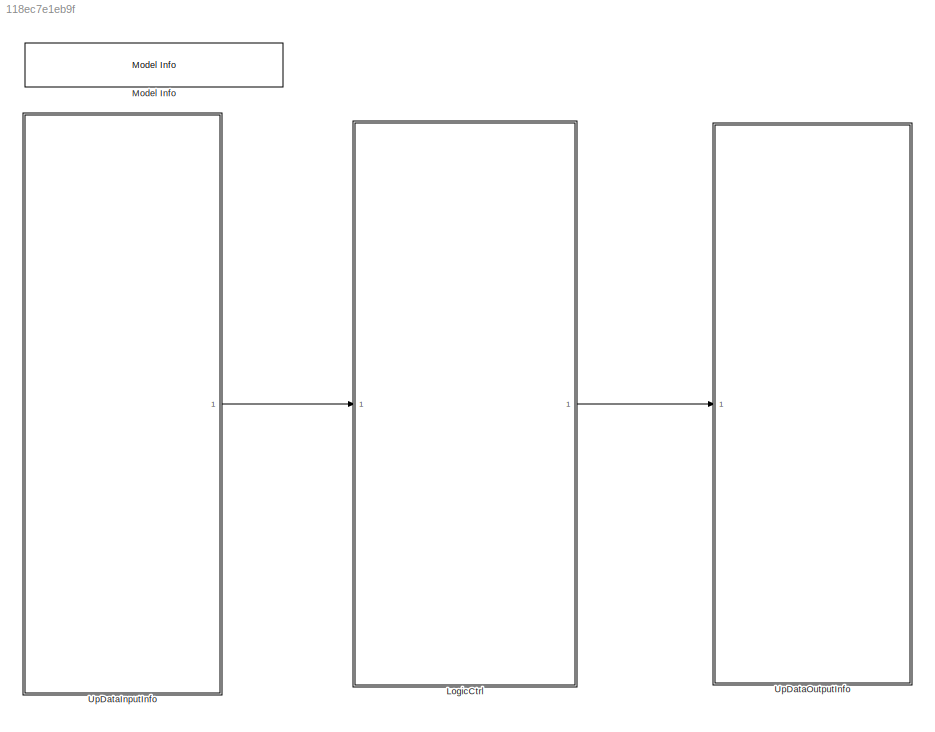
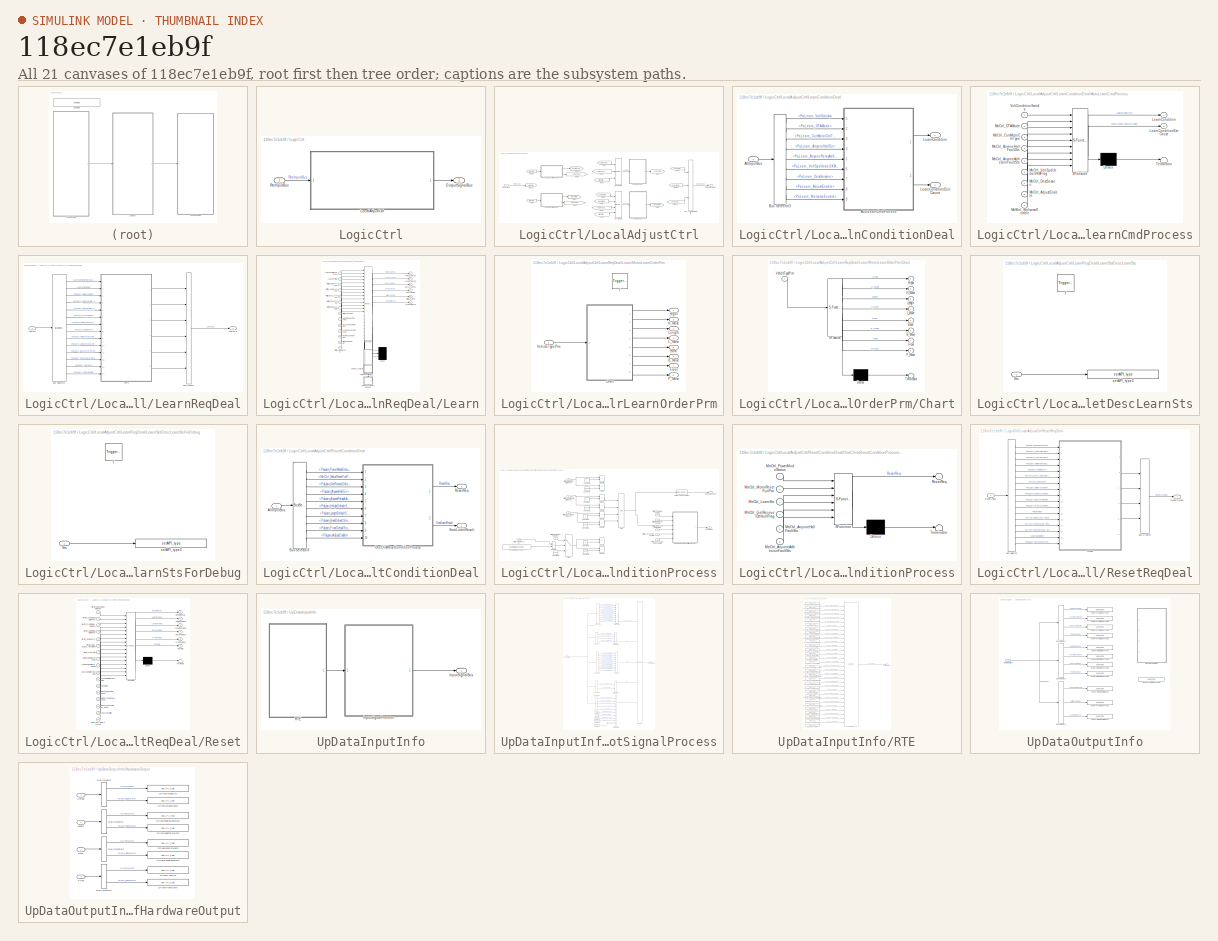
[diagram: thumbnail index - all 21 canvases of the model, root first then tree order]
MODEL slx_118ec7e1eb9f
KIND model
BLOCK [SubSystem] LogicCtrl
  Ports = [1, 1]
  Priority = 2
  RTWFcnNameOpts = Use subsystem name
  RTWSystemCode = Nonreusable function
  RequestExecContextInheritance = off
  TreatAsAtomicUnit = on
BLOCK [SubSystem] LogicCtrl/LocalAdjustCtrl
  AttributesFormatString = %<Description>
  Description = 学习逻辑处理
  Ports = [1, 1]
  RequestExecContextInheritance = off
BLOCK [BusCreator] LogicCtrl/LocalAdjustCtrl/Bus Creator
  DisplayOption = bar
  InheritFromInputs = on
  Inputs = 3
  Ports = [3, 1]
BLOCK [BusCreator] LogicCtrl/LocalAdjustCtrl/Bus Creator1
  DisplayOption = bar
  InheritFromInputs = on
  Inputs = 4
  Ports = [4, 1]
BLOCK [BusCreator] LogicCtrl/LocalAdjustCtrl/Can_LengthMotorCtrl2
  DisplayOption = bar
  InheritFromInputs = on
  Inputs = 3
  Ports = [3, 1]
BLOCK [From] LogicCtrl/LocalAdjustCtrl/From1
  GotoTag = AllInputBus
BLOCK [From] LogicCtrl/LocalAdjustCtrl/From10
  GotoTag = ResetOutBus
BLOCK [From] LogicCtrl/LocalAdjustCtrl/From11
  GotoTag = SeatLearnResult
BLOCK [From] LogicCtrl/LocalAdjustCtrl/From19
  GotoTag = AllInputBus
BLOCK [From] LogicCtrl/LocalAdjustCtrl/From2
  GotoTag = LearnConditionExitCause
BLOCK [From] LogicCtrl/LocalAdjustCtrl/From3
  GotoTag = LearnCondition
BLOCK [From] LogicCtrl/LocalAdjustCtrl/From4
  GotoTag = LearnOutBus
BLOCK [From] LogicCtrl/LocalAdjustCtrl/From5
  GotoTag = AllInputBus
BLOCK [From] LogicCtrl/LocalAdjustCtrl/From6
  GotoTag = AllInputBus
BLOCK [From] LogicCtrl/LocalAdjustCtrl/From7
  GotoTag = LearnCondition
BLOCK [From] LogicCtrl/LocalAdjustCtrl/From8
  GotoTag = ResetReq
BLOCK [From] LogicCtrl/LocalAdjustCtrl/From9
  GotoTag = LearnOutBus
BLOCK [Goto] LogicCtrl/LocalAdjustCtrl/Goto1
  GotoTag = LearnCondition
BLOCK [Goto] LogicCtrl/LocalAdjustCtrl/Goto17
  GotoTag = AllInputBus
BLOCK [Goto] LogicCtrl/LocalAdjustCtrl/Goto2
  GotoTag = LearnConditionExitCause
BLOCK [Goto] LogicCtrl/LocalAdjustCtrl/Goto3
  GotoTag = LearnOutBus
BLOCK [Goto] LogicCtrl/LocalAdjustCtrl/Goto4
  GotoTag = ResetReq
BLOCK [Goto] LogicCtrl/LocalAdjustCtrl/Goto5
  GotoTag = SeatLearnResult
BLOCK [Goto] LogicCtrl/LocalAdjustCtrl/Goto6
  GotoTag = ResetOutBus
BLOCK [SubSystem] LogicCtrl/LocalAdjustCtrl/LearnConditionDeal
  Ports = [1, 2]
  RequestExecContextInheritance = off
BLOCK [Inport] LogicCtrl/LocalAdjustCtrl/LearnConditionDeal/AllInputBus
  IconDisplay = Port number
BLOCK [SubSystem] LogicCtrl/LocalAdjustCtrl/LearnConditionDeal/AutoLearnCmdProcess
  ErrorFcn = Stateflow.Translate.translate
  PermitHierarchicalResolution = ExplicitOnly
  Ports = [9, 2]
  RequestExecContextInheritance = off
  SFBlockType = Chart
  TreatAsAtomicUnit = on
BLOCK [Demux] LogicCtrl/LocalAdjustCtrl/LearnConditionDeal/AutoLearnCmdProcess/ Demux 
  Outputs = 1
  Ports = [1, 1]
BLOCK [S-Function] LogicCtrl/LocalAdjustCtrl/LearnConditionDeal/AutoLearnCmdProcess/ SFunction 
  EnableBusSupport = on
  FunctionName = sf_sfun
  Parameters = FALSE,TRUE
  PortCounts = [9 3]
  Ports = [9, 3]
  SFcnIsStateOwnerBlock = off
  SFunctionDeploymentMode = off
  Tag = Stateflow S-Function Appl_PaLearn_CtrlModel 1
BLOCK [Terminator] LogicCtrl/LocalAdjustCtrl/LearnConditionDeal/AutoLearnCmdProcess/ Terminator 
BLOCK [Outport] LogicCtrl/LocalAdjustCtrl/LearnConditionDeal/AutoLearnCmdProcess/LearnCondition
  IconDisplay = Port number
BLOCK [Outport] LogicCtrl/LocalAdjustCtrl/LearnConditionDeal/AutoLearnCmdProcess/LearnConditionExitCause
  IconDisplay = Port number
  Port = 2
BLOCK [Inport] LogicCtrl/LocalAdjustCtrl/LearnConditionDeal/AutoLearnCmdProcess/MtrCtrl_AdjustEnable
  IconDisplay = Port number
  Port = 8
BLOCK [Inport] LogicCtrl/LocalAdjustCtrl/LearnConditionDeal/AutoLearnCmdProcess/MtrCtrl_AnyoneAdhesionFaultSts
  IconDisplay = Port number
  Port = 5
BLOCK [Inport] LogicCtrl/LocalAdjustCtrl/LearnConditionDeal/AutoLearnCmdProcess/MtrCtrl_AnyoneHallFaultSts
  IconDisplay = Port number
  Port = 4
BLOCK [Inport] LogicCtrl/LocalAdjustCtrl/LearnConditionDeal/AutoLearnCmdProcess/MtrCtrl_CurrMotorCtrlType
  IconDisplay = Port number
  Port = 3
BLOCK [Inport] LogicCtrl/LocalAdjustCtrl/LearnConditionDeal/AutoLearnCmdProcess/MtrCtrl_DescSession
  IconDisplay = Port number
  Port = 7
BLOCK [Inport] LogicCtrl/LocalAdjustCtrl/LearnConditionDeal/AutoLearnCmdProcess/MtrCtrl_OTAMode
  IconDisplay = Port number
  Port = 2
BLOCK [Inport] LogicCtrl/LocalAdjustCtrl/LearnConditionDeal/AutoLearnCmdProcess/MtrCtrl_VehSpdUnder3KMFlag
  IconDisplay = Port number
  Port = 6
BLOCK [Inport] LogicCtrl/LocalAdjustCtrl/LearnConditionDeal/AutoLearnCmdProcess/MtrWel_WelcomeEnable
  IconDisplay = Port number
  Port = 9
BLOCK [Inport] LogicCtrl/LocalAdjustCtrl/LearnConditionDeal/AutoLearnCmdProcess/VoltConditionSatisfy
  IconDisplay = Port number
BLOCK [BusSelector] LogicCtrl/LocalAdjustCtrl/LearnConditionDeal/Bus Selector3
  OutputAsBus = off
  OutputSignals = Power.PaLearn_VoltSatisfy,LearnDescConditions.PaLearn_OTAMode,LearnDescConditions.PaLearn_CurrMotorCtrlType,ErrSts.PaLearn_AnyoneHallErr,ErrSts.PaLearn_AnyoneRelayAdheErr,LearnDescConditions.PaLearn_VehSpdUnder3KMFlag,LearnDescConditions.PaLearn_DescSession,LearnDescConditions.PaLearn_AdjustEnable,LearnDescConditions.PaLearn_WelcomeEnable
  Ports = [1, 9]
BLOCK [Outport] LogicCtrl/LocalAdjustCtrl/LearnConditionDeal/LearnCondition
  IconDisplay = Port number
BLOCK [Outport] LogicCtrl/LocalAdjustCtrl/LearnConditionDeal/LearnConditionExitCause
  IconDisplay = Port number
  Port = 2
BLOCK [SubSystem] LogicCtrl/LocalAdjustCtrl/LearnReqDeal
  Ports = [1, 1]
  RequestExecContextInheritance = off
BLOCK [BusCreator] LogicCtrl/LocalAdjustCtrl/LearnReqDeal/Bus Creator
  DisplayOption = bar
  InheritFromInputs = on
  Inputs = 6
  Ports = [6, 1]
BLOCK [BusSelector] LogicCtrl/LocalAdjustCtrl/LearnReqDeal/Bus Selector1
  OutputAsBus = off
  OutputSignals = LearnConditionExitCause,LearnCondition,RteInputBus.ErrSts.PaLearn_HeightStallErr,RteInputBus.ErrSts.PaLearn_LengthStallErr,RteInputBus.ErrSts.PaLearn_BackStallErr,RteInputBus.ErrSts.PaLearn_FrontStallErr,RteInputBus.LearnDescConditions.PaLearn_DiagnoseLearnIn,RteInputBus.LearnDescConditions.PaLearn_VehiclePrm,RteInputBus.ErrSts.PaLearn_HeightMotorTimeOutErr,RteInputBus.ErrSts.PaLearn_LengthMotorTi...<+205ch>
  Ports = [1, 14]
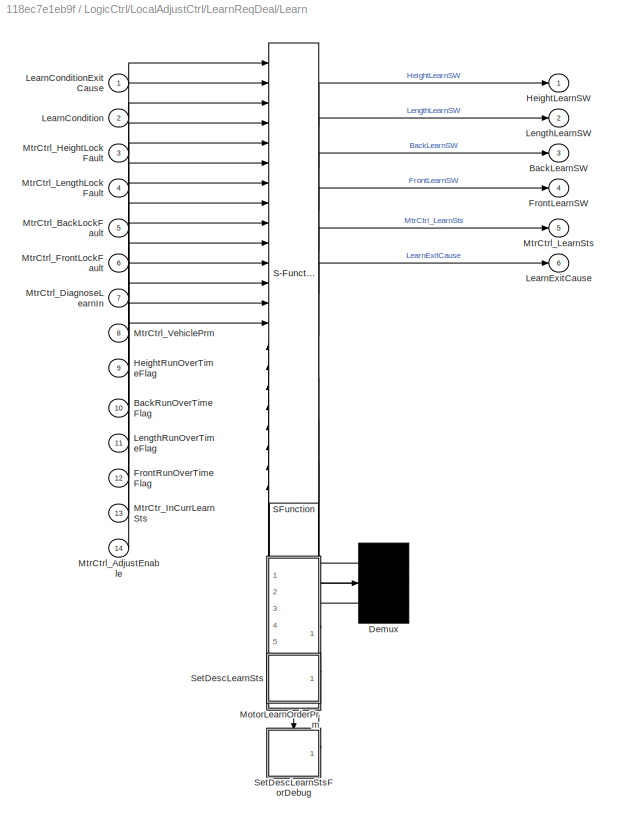
BLOCK [SubSystem] LogicCtrl/LocalAdjustCtrl/LearnReqDeal/Learn
  ErrorFcn = Stateflow.Translate.translate
  PermitHierarchicalResolution = ExplicitOnly
  Ports = [14, 6]
  RequestExecContextInheritance = off
  SFBlockType = Chart
  TreatAsAtomicUnit = on
BLOCK [Demux] LogicCtrl/LocalAdjustCtrl/LearnReqDeal/Learn/ Demux 
  Outputs = 3
  Ports = [1, 3]
BLOCK [S-Function] LogicCtrl/LocalAdjustCtrl/LearnReqDeal/Learn/ SFunction 
  EnableBusSupport = on
  FunctionName = sf_sfun
  Parameters = CAL_LearnAllTimeMax_150s,CAL_LearnSingleTimeMax_60s,D_FirstMove,D_FourthlyMove,D_Invalid,D_SecondMove,D_ThirdlyMove,FALSE,TRUE
  PortCounts = [22 10]
  Ports = [22, 10]
  SFcnIsStateOwnerBlock = off
  SFunctionDeploymentMode = off
  Tag = Stateflow S-Function Appl_PaLearn_CtrlModel 42
BLOCK [Outport] LogicCtrl/LocalAdjustCtrl/LearnReqDeal/Learn/BackLearnSW
  IconDisplay = Port number
  Port = 3
BLOCK [Inport] LogicCtrl/LocalAdjustCtrl/LearnReqDeal/Learn/BackRunOverTimeFlag
  IconDisplay = Port number
  Port = 10
BLOCK [Outport] LogicCtrl/LocalAdjustCtrl/LearnReqDeal/Learn/FrontLearnSW
  IconDisplay = Port number
  Port = 4
BLOCK [Inport] LogicCtrl/LocalAdjustCtrl/LearnReqDeal/Learn/FrontRunOverTimeFlag
  IconDisplay = Port number
  Port = 12
BLOCK [Outport] LogicCtrl/LocalAdjustCtrl/LearnReqDeal/Learn/HeightLearnSW
  IconDisplay = Port number
BLOCK [Inport] LogicCtrl/LocalAdjustCtrl/LearnReqDeal/Learn/HeightRunOverTimeFlag
  IconDisplay = Port number
  Port = 9
BLOCK [Inport] LogicCtrl/LocalAdjustCtrl/LearnReqDeal/Learn/LearnCondition
  IconDisplay = Port number
  Port = 2
BLOCK [Inport] LogicCtrl/LocalAdjustCtrl/LearnReqDeal/Learn/LearnConditionExitCause
  IconDisplay = Port number
BLOCK [Outport] LogicCtrl/LocalAdjustCtrl/LearnReqDeal/Learn/LearnExitCause
  IconDisplay = Port number
  Port = 6
BLOCK [Outport] LogicCtrl/LocalAdjustCtrl/LearnReqDeal/Learn/LengthLearnSW
  IconDisplay = Port number
  Port = 2
BLOCK [Inport] LogicCtrl/LocalAdjustCtrl/LearnReqDeal/Learn/LengthRunOverTimeFlag
  IconDisplay = Port number
  Port = 11
BLOCK [SubSystem] LogicCtrl/LocalAdjustCtrl/LearnReqDeal/Learn/MotorLearnOrderPrm
  Commented = on
  Ports = [1, 8, 0, 1]
  PreDeleteFcn = Stateflow.SLINSF.SimulinkMan.removePreDeleteFcn
  RequestExecContextInheritance = off
  UndoDeleteFcn = Stateflow.SLINSF.SimulinkMan.restorePreDeleteFcn
BLOCK [Outport] LogicCtrl/LocalAdjustCtrl/LearnReqDeal/Learn/MotorLearnOrderPrm/B_Move
  IconDisplay = Port number
  Port = 6
BLOCK [Outport] LogicCtrl/LocalAdjustCtrl/LearnReqDeal/Learn/MotorLearnOrderPrm/Back
  IconDisplay = Port number
  Port = 5
BLOCK [SubSystem] LogicCtrl/LocalAdjustCtrl/LearnReqDeal/Learn/MotorLearnOrderPrm/Chart
  ErrorFcn = Stateflow.Translate.translate
  PermitHierarchicalResolution = ExplicitOnly
  Ports = [1, 8]
  RequestExecContextInheritance = off
  SFBlockType = Chart
  TreatAsAtomicUnit = on
BLOCK [Demux] LogicCtrl/LocalAdjustCtrl/LearnReqDeal/Learn/MotorLearnOrderPrm/Chart/ Demux 
  Outputs = 1
  Ports = [1, 1]
BLOCK [S-Function] LogicCtrl/LocalAdjustCtrl/LearnReqDeal/Learn/MotorLearnOrderPrm/Chart/ SFunction 
  EnableBusSupport = off
  FunctionName = sf_sfun
  Parameters = D_FirstMove,D_FourthlyMove,D_Invalid,D_SecondMove,D_ThirdlyMove
  PortCounts = [1 9]
  Ports = [1, 9]
  SFcnIsStateOwnerBlock = off
  SFunctionDeploymentMode = off
  Tag = Stateflow S-Function Appl_PaLearn_CtrlModel 43
BLOCK [Terminator] LogicCtrl/LocalAdjustCtrl/LearnReqDeal/Learn/MotorLearnOrderPrm/Chart/ Terminator 
BLOCK [Outport] LogicCtrl/LocalAdjustCtrl/LearnReqDeal/Learn/MotorLearnOrderPrm/Chart/B_Move
  IconDisplay = Port number
  Port = 6
BLOCK [Outport] LogicCtrl/LocalAdjustCtrl/LearnReqDeal/Learn/MotorLearnOrderPrm/Chart/Back
  IconDisplay = Port number
  Port = 5
BLOCK [Outport] LogicCtrl/LocalAdjustCtrl/LearnReqDeal/Learn/MotorLearnOrderPrm/Chart/F_Move
  IconDisplay = Port number
  Port = 8
BLOCK [Outport] LogicCtrl/LocalAdjustCtrl/LearnReqDeal/Learn/MotorLearnOrderPrm/Chart/Front
  IconDisplay = Port number
  Port = 7
BLOCK [Outport] LogicCtrl/LocalAdjustCtrl/LearnReqDeal/Learn/MotorLearnOrderPrm/Chart/H_Move
  IconDisplay = Port number
  Port = 2
BLOCK [Outport] LogicCtrl/LocalAdjustCtrl/LearnReqDeal/Learn/MotorLearnOrderPrm/Chart/Hight
  IconDisplay = Port number
BLOCK [Outport] LogicCtrl/LocalAdjustCtrl/LearnReqDeal/Learn/MotorLearnOrderPrm/Chart/L_Move
  IconDisplay = Port number
  Port = 4
BLOCK [Outport] LogicCtrl/LocalAdjustCtrl/LearnReqDeal/Learn/MotorLearnOrderPrm/Chart/Length
  IconDisplay = Port number
  Port = 3
BLOCK [Inport] LogicCtrl/LocalAdjustCtrl/LearnReqDeal/Learn/MotorLearnOrderPrm/Chart/VehicleTypePrm
  IconDisplay = Port number
BLOCK [Outport] LogicCtrl/LocalAdjustCtrl/LearnReqDeal/Learn/MotorLearnOrderPrm/F_Move
  IconDisplay = Port number
  Port = 8
BLOCK [Outport] LogicCtrl/LocalAdjustCtrl/LearnReqDeal/Learn/MotorLearnOrderPrm/Front
  IconDisplay = Port number
  Port = 7
BLOCK [Outport] LogicCtrl/LocalAdjustCtrl/LearnReqDeal/Learn/MotorLearnOrderPrm/H_Move
  IconDisplay = Port number
  Port = 2
BLOCK [Outport] LogicCtrl/LocalAdjustCtrl/LearnReqDeal/Learn/MotorLearnOrderPrm/Hight
  IconDisplay = Port number
BLOCK [Outport] LogicCtrl/LocalAdjustCtrl/LearnReqDeal/Learn/MotorLearnOrderPrm/L_Move
  IconDisplay = Port number
  Port = 4
BLOCK [Outport] LogicCtrl/LocalAdjustCtrl/LearnReqDeal/Learn/MotorLearnOrderPrm/Length
  IconDisplay = Port number
  Port = 3
BLOCK [Inport] LogicCtrl/LocalAdjustCtrl/LearnReqDeal/Learn/MotorLearnOrderPrm/VehicleTypePrm
  IconDisplay = Port number
BLOCK [TriggerPort] LogicCtrl/LocalAdjustCtrl/LearnReqDeal/Learn/MotorLearnOrderPrm/f
  CopyFcn = Stateflow.SLINSF.SimulinkMan.removeBlockPreDeleteFcn
  Ports = []
  PreDeleteFcn = Stateflow.SLINSF.SimulinkMan.unsafePredeleteFcn
  StatesWhenEnabling = held
  TriggerType = function-call
  VariantControl = (inherit)
BLOCK [Inport] LogicCtrl/LocalAdjustCtrl/LearnReqDeal/Learn/MtrCtr_InCurrLearnSts
  IconDisplay = Port number
  Port = 13
BLOCK [Inport] LogicCtrl/LocalAdjustCtrl/LearnReqDeal/Learn/MtrCtrl_AdjustEnable
  IconDisplay = Port number
  Port = 14
BLOCK [Inport] LogicCtrl/LocalAdjustCtrl/LearnReqDeal/Learn/MtrCtrl_BackLockFault
  IconDisplay = Port number
  Port = 5
BLOCK [Inport] LogicCtrl/LocalAdjustCtrl/LearnReqDeal/Learn/MtrCtrl_DiagnoseLearnIn
  IconDisplay = Port number
  Port = 7
BLOCK [Inport] LogicCtrl/LocalAdjustCtrl/LearnReqDeal/Learn/MtrCtrl_FrontLockFault
  IconDisplay = Port number
  Port = 6
BLOCK [Inport] LogicCtrl/LocalAdjustCtrl/LearnReqDeal/Learn/MtrCtrl_HeightLockFault
  IconDisplay = Port number
  Port = 3
BLOCK [Outport] LogicCtrl/LocalAdjustCtrl/LearnReqDeal/Learn/MtrCtrl_LearnSts
  IconDisplay = Port number
  Port = 5
BLOCK [Inport] LogicCtrl/LocalAdjustCtrl/LearnReqDeal/Learn/MtrCtrl_LengthLockFault
  IconDisplay = Port number
  Port = 4
BLOCK [Inport] LogicCtrl/LocalAdjustCtrl/LearnReqDeal/Learn/MtrCtrl_VehiclePrm
  IconDisplay = Port number
  Port = 8
BLOCK [SubSystem] LogicCtrl/LocalAdjustCtrl/LearnReqDeal/Learn/SetDescLearnSts
  Ports = [1, 0, 0, 1]
  PreDeleteFcn = Stateflow.SLINSF.SimulinkMan.removePreDeleteFcn
  RequestExecContextInheritance = off
  UndoDeleteFcn = Stateflow.SLINSF.SimulinkMan.restorePreDeleteFcn
BLOCK [Inport] LogicCtrl/LocalAdjustCtrl/LearnReqDeal/Learn/SetDescLearnSts/Sts
  IconDisplay = Port number
BLOCK [TriggerPort] LogicCtrl/LocalAdjustCtrl/LearnReqDeal/Learn/SetDescLearnSts/f
  CopyFcn = Stateflow.SLINSF.SimulinkMan.removeBlockPreDeleteFcn
  Ports = []
  PreDeleteFcn = Stateflow.SLINSF.SimulinkMan.unsafePredeleteFcn
  StatesWhenEnabling = held
  TriggerType = function-call
  VariantControl = (inherit)
BLOCK [Reference] LogicCtrl/LocalAdjustCtrl/LearnReqDeal/Learn/SetDescLearnSts/setAPI_type3  REF=DareLib/Dare/setAPI_type
  AttributesFormatString = %<g_funcname>
  Ports = [1]
  SourceBlock = DareLib/Dare/setAPI_type
  SourceProductName = Dare Library
  SourceType = Dare Custom
BLOCK [SubSystem] LogicCtrl/LocalAdjustCtrl/LearnReqDeal/Learn/SetDescLearnStsForDebug
  Commented = on
  Ports = [1, 0, 0, 1]
  PreDeleteFcn = Stateflow.SLINSF.SimulinkMan.removePreDeleteFcn
  RequestExecContextInheritance = off
  UndoDeleteFcn = Stateflow.SLINSF.SimulinkMan.restorePreDeleteFcn
BLOCK [Inport] LogicCtrl/LocalAdjustCtrl/LearnReqDeal/Learn/SetDescLearnStsForDebug/Sts
  IconDisplay = Port number
BLOCK [TriggerPort] LogicCtrl/LocalAdjustCtrl/LearnReqDeal/Learn/SetDescLearnStsForDebug/f
  CopyFcn = Stateflow.SLINSF.SimulinkMan.removeBlockPreDeleteFcn
  Ports = []
  PreDeleteFcn = Stateflow.SLINSF.SimulinkMan.unsafePredeleteFcn
  StatesWhenEnabling = held
  TriggerType = function-call
  VariantControl = (inherit)
BLOCK [Reference] LogicCtrl/LocalAdjustCtrl/LearnReqDeal/Learn/SetDescLearnStsForDebug/setAPI_type3  REF=DareLib/Dare/setAPI_type
  AttributesFormatString = %<g_funcname>
  Ports = [1]
  SourceBlock = DareLib/Dare/setAPI_type
  SourceProductName = Dare Library
  SourceType = Dare Custom
BLOCK [Inport] LogicCtrl/LocalAdjustCtrl/LearnReqDeal/LearnIn
  IconDisplay = Port number
BLOCK [Outport] LogicCtrl/LocalAdjustCtrl/LearnReqDeal/LearnOut
  IconDisplay = Port number
BLOCK [Outport] LogicCtrl/LocalAdjustCtrl/OutputSignalBus
  IconDisplay = Port number
BLOCK [SubSystem] LogicCtrl/LocalAdjustCtrl/ResetConditionDeal
  Ports = [1, 2]
  RequestExecContextInheritance = off
BLOCK [Inport] LogicCtrl/LocalAdjustCtrl/ResetConditionDeal/AllInputBus
  IconDisplay = Port number
BLOCK [BusSelector] LogicCtrl/LocalAdjustCtrl/ResetConditionDeal/Bus Selector3
  OutputAsBus = off
  OutputSignals = Power.PaLearn_PowerModeStatus,Reset.MtrCtrl_MotorResetFunPrm,Reset.PaLearn_GetRecoverDefaultFlag,ErrSts.PaLearn_AnyoneHallErr,ErrSts.PaLearn_AnyoneRelayAdheErr,HallCnt.PaLearn_HeightDefaultStopPos,HallCnt.PaLearn_LengthDefaultStopPos,HallCnt.PaLearn_BackDefaultStopPos,HallCnt.PaLearn_FrontDefaulStoptPos,LearnDescConditions.PaLearn_AdjustEnable
  Ports = [1, 10]
BLOCK [SubSystem] LogicCtrl/LocalAdjustCtrl/ResetConditionDeal/OneClickResetConditionProcess
  Description = 一键复位条件处理（BM400）
  Ports = [10, 2]
  RequestExecContextInheritance = off
BLOCK [Logic] LogicCtrl/LocalAdjustCtrl/ResetConditionDeal/OneClickResetConditionProcess/AND
  AllPortsSameDT = off
  Inputs = 4
  OutDataTypeStr = boolean
  Ports = [4, 1]
BLOCK [Constant] LogicCtrl/LocalAdjustCtrl/ResetConditionDeal/OneClickResetConditionProcess/Constant
  Value = 0
BLOCK [Constant] LogicCtrl/LocalAdjustCtrl/ResetConditionDeal/OneClickResetConditionProcess/Constant1
  Value = 65535
BLOCK [Constant] LogicCtrl/LocalAdjustCtrl/ResetConditionDeal/OneClickResetConditionProcess/Constant2
  Value = 0
BLOCK [Constant] LogicCtrl/LocalAdjustCtrl/ResetConditionDeal/OneClickResetConditionProcess/Constant3
  Value = 65535
BLOCK [Constant] LogicCtrl/LocalAdjustCtrl/ResetConditionDeal/OneClickResetConditionProcess/Constant4
  Commented = on
  Value = 0
BLOCK [Constant] LogicCtrl/LocalAdjustCtrl/ResetConditionDeal/OneClickResetConditionProcess/Constant5
  Commented = on
  Value = 65535
BLOCK [Constant] LogicCtrl/LocalAdjustCtrl/ResetConditionDeal/OneClickResetConditionProcess/Constant6
  Commented = on
  Value = 0
BLOCK [Constant] LogicCtrl/LocalAdjustCtrl/ResetConditionDeal/OneClickResetConditionProcess/Constant7
  Commented = on
  Value = 65535
BLOCK [Constant] LogicCtrl/LocalAdjustCtrl/ResetConditionDeal/OneClickResetConditionProcess/Constant9
  Commented = on
  Value = 30000
BLOCK [DataTypeConversion] LogicCtrl/LocalAdjustCtrl/ResetConditionDeal/OneClickResetConditionProcess/Data Type Conversion
  OutDataTypeStr = uint8
  RndMeth = Floor
  SaturateOnIntegerOverflow = off
BLOCK [Reference] LogicCtrl/LocalAdjustCtrl/ResetConditionDeal/OneClickResetConditionProcess/Enumerated Constant  REF=simulink/Sources/Enumerated
Constant
  Commented = on
  Ports = [0, 1]
  SourceBlock = simulink/Sources/Enumerated\nConstant
  SourceProductBaseCode = SL
  SourceProductName = Simulink
  SourceType = Enumerated Constant
BLOCK [RelationalOperator] LogicCtrl/LocalAdjustCtrl/ResetConditionDeal/OneClickResetConditionProcess/Equal
  InputSameDT = off
  Operator = ~=
  OutDataTypeStr = boolean
  Ports = [2, 1]
  RndMeth = Simplest
BLOCK [RelationalOperator] LogicCtrl/LocalAdjustCtrl/ResetConditionDeal/OneClickResetConditionProcess/Equal1
  InputSameDT = off
  Operator = ~=
  OutDataTypeStr = boolean
  Ports = [2, 1]
  RndMeth = Simplest
BLOCK [RelationalOperator] LogicCtrl/LocalAdjustCtrl/ResetConditionDeal/OneClickResetConditionProcess/Equal2
  InputSameDT = off
  Operator = ~=
  OutDataTypeStr = boolean
  Ports = [2, 1]
  RndMeth = Simplest
BLOCK [RelationalOperator] LogicCtrl/LocalAdjustCtrl/ResetConditionDeal/OneClickResetConditionProcess/Equal3
  InputSameDT = off
  Operator = ~=
  OutDataTypeStr = boolean
  Ports = [2, 1]
  RndMeth = Simplest
BLOCK [RelationalOperator] LogicCtrl/LocalAdjustCtrl/ResetConditionDeal/OneClickResetConditionProcess/Equal4
  Commented = on
  InputSameDT = off
  Operator = ~=
  OutDataTypeStr = boolean
  Ports = [2, 1]
  RndMeth = Simplest
BLOCK [RelationalOperator] LogicCtrl/LocalAdjustCtrl/ResetConditionDeal/OneClickResetConditionProcess/Equal5
  Commented = on
  InputSameDT = off
  Operator = ~=
  OutDataTypeStr = boolean
  Ports = [2, 1]
  RndMeth = Simplest
BLOCK [RelationalOperator] LogicCtrl/LocalAdjustCtrl/ResetConditionDeal/OneClickResetConditionProcess/Equal6
  Commented = on
  InputSameDT = off
  Operator = ~=
  OutDataTypeStr = boolean
  Ports = [2, 1]
  RndMeth = Simplest
BLOCK [RelationalOperator] LogicCtrl/LocalAdjustCtrl/ResetConditionDeal/OneClickResetConditionProcess/Equal7
  Commented = on
  InputSameDT = off
  Operator = ~=
  OutDataTypeStr = boolean
  Ports = [2, 1]
  RndMeth = Simplest
BLOCK [RelationalOperator] LogicCtrl/LocalAdjustCtrl/ResetConditionDeal/OneClickResetConditionProcess/Equal8
  Commented = on
  InputSameDT = off
  Operator = ==
  OutDataTypeStr = boolean
  Ports = [2, 1]
  RndMeth = Simplest
BLOCK [Inport] LogicCtrl/LocalAdjustCtrl/ResetConditionDeal/OneClickResetConditionProcess/MtrCtrl_AdjustEnable
  IconDisplay = Port number
  Port = 10
BLOCK [Inport] LogicCtrl/LocalAdjustCtrl/ResetConditionDeal/OneClickResetConditionProcess/MtrCtrl_AnyoneAdhesionFaultSts
  IconDisplay = Port number
  Port = 5
BLOCK [Inport] LogicCtrl/LocalAdjustCtrl/ResetConditionDeal/OneClickResetConditionProcess/MtrCtrl_AnyoneHallFaultSts
  IconDisplay = Port number
  Port = 4
BLOCK [Inport] LogicCtrl/LocalAdjustCtrl/ResetConditionDeal/OneClickResetConditionProcess/MtrCtrl_BackDefaultStopPos
  IconDisplay = Port number
  Port = 8
BLOCK [Inport] LogicCtrl/LocalAdjustCtrl/ResetConditionDeal/OneClickResetConditionProcess/MtrCtrl_FrontDefaulStoptPos
  IconDisplay = Port number
  Port = 9
BLOCK [Inport] LogicCtrl/LocalAdjustCtrl/ResetConditionDeal/OneClickResetConditionProcess/MtrCtrl_GetRecoverDefaultFlag
  IconDisplay = Port number
  Port = 3
BLOCK [Inport] LogicCtrl/LocalAdjustCtrl/ResetConditionDeal/OneClickResetConditionProcess/MtrCtrl_HeightDefaultStopPos
  IconDisplay = Port number
  Port = 6
BLOCK [Inport] LogicCtrl/LocalAdjustCtrl/ResetConditionDeal/OneClickResetConditionProcess/MtrCtrl_LengthDefaultStopPos
  IconDisplay = Port number
  Port = 7
BLOCK [Inport] LogicCtrl/LocalAdjustCtrl/ResetConditionDeal/OneClickResetConditionProcess/MtrCtrl_MotorResetFunPrm
  IconDisplay = Port number
  Port = 2
BLOCK [Inport] LogicCtrl/LocalAdjustCtrl/ResetConditionDeal/OneClickResetConditionProcess/MtrCtrl_PowerModeStatus
  IconDisplay = Port number
BLOCK [SubSystem] LogicCtrl/LocalAdjustCtrl/ResetConditionDeal/OneClickResetConditionProcess/OneClickResetConditionProcess
  ErrorFcn = Stateflow.Translate.translate
  PermitHierarchicalResolution = ExplicitOnly
  Ports = [6, 1]
  RequestExecContextInheritance = off
  SFBlockType = Chart
  TreatAsAtomicUnit = on
BLOCK [Demux] LogicCtrl/LocalAdjustCtrl/ResetConditionDeal/OneClickResetConditionProcess/OneClickResetConditionProcess/ Demux 
  Outputs = 1
  Ports = [1, 1]
BLOCK [S-Function] LogicCtrl/LocalAdjustCtrl/ResetConditionDeal/OneClickResetConditionProcess/OneClickResetConditionProcess/ SFunction 
  EnableBusSupport = on
  FunctionName = sf_sfun
  Parameters = FALSE,TRUE
  PortCounts = [6 2]
  Ports = [6, 2]
  SFcnIsStateOwnerBlock = off
  SFunctionDeploymentMode = off
  Tag = Stateflow S-Function Appl_PaLearn_CtrlModel 7
BLOCK [Terminator] LogicCtrl/LocalAdjustCtrl/ResetConditionDeal/OneClickResetConditionProcess/OneClickResetConditionProcess/ Terminator 
BLOCK [Inport] LogicCtrl/LocalAdjustCtrl/ResetConditionDeal/OneClickResetConditionProcess/OneClickResetConditionProcess/MtrCtrl_AnyoneAdhesionFaultSts
  IconDisplay = Port number
  Port = 6
BLOCK [Inport] LogicCtrl/LocalAdjustCtrl/ResetConditionDeal/OneClickResetConditionProcess/OneClickResetConditionProcess/MtrCtrl_AnyoneHallFaultSts
  IconDisplay = Port number
  Port = 5
BLOCK [Inport] LogicCtrl/LocalAdjustCtrl/ResetConditionDeal/OneClickResetConditionProcess/OneClickResetConditionProcess/MtrCtrl_GetRecoverDefaultFlag
  IconDisplay = Port number
  Port = 4
BLOCK [Inport] LogicCtrl/LocalAdjustCtrl/ResetConditionDeal/OneClickResetConditionProcess/OneClickResetConditionProcess/MtrCtrl_LearnSts
  IconDisplay = Port number
  Port = 3
BLOCK [Inport] LogicCtrl/LocalAdjustCtrl/ResetConditionDeal/OneClickResetConditionProcess/OneClickResetConditionProcess/MtrCtrl_MotorResetFunPrm
  IconDisplay = Port number
  Port = 2
BLOCK [Inport] LogicCtrl/LocalAdjustCtrl/ResetConditionDeal/OneClickResetConditionProcess/OneClickResetConditionProcess/MtrCtrl_PowerModeStatus
  IconDisplay = Port number
BLOCK [Outport] LogicCtrl/LocalAdjustCtrl/ResetConditionDeal/OneClickResetConditionProcess/OneClickResetConditionProcess/ResetReq
  IconDisplay = Port number
BLOCK [Outport] LogicCtrl/LocalAdjustCtrl/ResetConditionDeal/OneClickResetConditionProcess/ResetReq
  IconDisplay = Port number
BLOCK [Outport] LogicCtrl/LocalAdjustCtrl/ResetConditionDeal/OneClickResetConditionProcess/SeatLearnResult
  IconDisplay = Port number
  Port = 2
BLOCK [Switch] LogicCtrl/LocalAdjustCtrl/ResetConditionDeal/OneClickResetConditionProcess/Switch
  Commented = on
  Criteria = u2 ~= 0
  InputSameDT = off
  SaturateOnIntegerOverflow = off
BLOCK [Outport] LogicCtrl/LocalAdjustCtrl/ResetConditionDeal/ResetReq
  IconDisplay = Port number
BLOCK [Outport] LogicCtrl/LocalAdjustCtrl/ResetConditionDeal/SeatLearnResult
  IconDisplay = Port number
  Port = 2
BLOCK [SubSystem] LogicCtrl/LocalAdjustCtrl/ResetReqDeal
  Ports = [1, 1]
  RequestExecContextInheritance = off
BLOCK [BusCreator] LogicCtrl/LocalAdjustCtrl/ResetReqDeal/Bus Creator
  DisplayOption = bar
  InheritFromInputs = on
  Inputs = 4
  Ports = [4, 1]
BLOCK [BusSelector] LogicCtrl/LocalAdjustCtrl/ResetReqDeal/Bus Selector
  OutputAsBus = off
  OutputSignals = RteInputBus.HallCnt.PaLearn_BackDefaultStopPos,RteInputBus.HallCnt.PaLearn_LengthDefaultStopPos,RteInputBus.HallCnt.PaLearn_FrontDefaulStoptPos,RteInputBus.HallCnt.PaLearn_HeightDefaultStopPos,RteInputBus.LearnDescConditions.PaLearn_VehiclePrm,RteInputBus.Reset.MtrCtrl_HIDO_SeatsButtonResetReq,LearnOut.MtrCtrl_LearnSts,RteInputBus.Reset.PaLearn_HeightAutoRunFlag,RteInputBus.Reset.PaLearn_LengthAut...<+303ch>
  Ports = [1, 17]
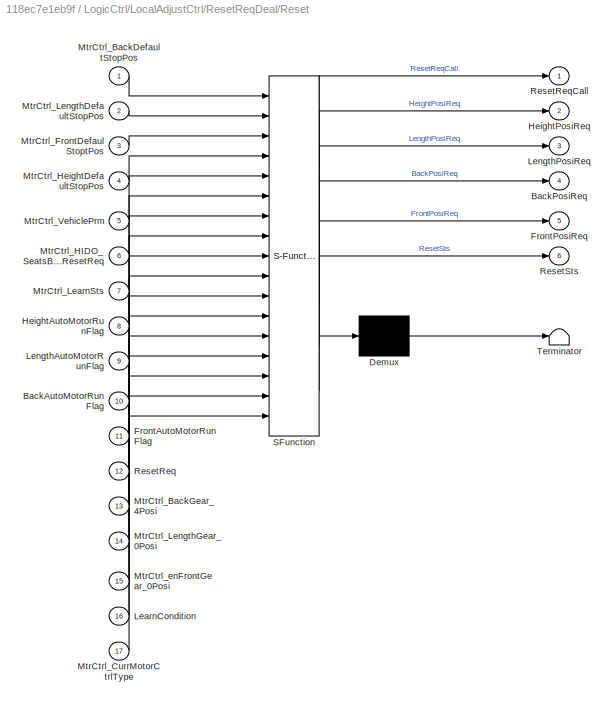
BLOCK [SubSystem] LogicCtrl/LocalAdjustCtrl/ResetReqDeal/Reset
  ErrorFcn = Stateflow.Translate.translate
  PermitHierarchicalResolution = ExplicitOnly
  Ports = [17, 6]
  RequestExecContextInheritance = off
  SFBlockType = Chart
  TreatAsAtomicUnit = on
BLOCK [Demux] LogicCtrl/LocalAdjustCtrl/ResetReqDeal/Reset/ Demux 
  Outputs = 1
  Ports = [1, 1]
BLOCK [S-Function] LogicCtrl/LocalAdjustCtrl/ResetReqDeal/Reset/ SFunction 
  EnableBusSupport = on
  FunctionName = sf_sfun
  Parameters = D_FirstMove,D_FourthlyMove,D_Invalid,D_SecondMove,D_ThirdlyMove,FALSE,TRUE
  PortCounts = [17 7]
  Ports = [17, 7]
  SFcnIsStateOwnerBlock = off
  SFunctionDeploymentMode = off
  Tag = Stateflow S-Function Appl_PaLearn_CtrlModel 2
BLOCK [Terminator] LogicCtrl/LocalAdjustCtrl/ResetReqDeal/Reset/ Terminator 
BLOCK [Inport] LogicCtrl/LocalAdjustCtrl/ResetReqDeal/Reset/BackAutoMotorRunFlag
  IconDisplay = Port number
  Port = 10
BLOCK [Outport] LogicCtrl/LocalAdjustCtrl/ResetReqDeal/Reset/BackPosiReq
  IconDisplay = Port number
  Port = 4
BLOCK [Inport] LogicCtrl/LocalAdjustCtrl/ResetReqDeal/Reset/FrontAutoMotorRunFlag
  IconDisplay = Port number
  Port = 11
BLOCK [Outport] LogicCtrl/LocalAdjustCtrl/ResetReqDeal/Reset/FrontPosiReq
  IconDisplay = Port number
  Port = 5
BLOCK [Inport] LogicCtrl/LocalAdjustCtrl/ResetReqDeal/Reset/HeightAutoMotorRunFlag
  IconDisplay = Port number
  Port = 8
BLOCK [Outport] LogicCtrl/LocalAdjustCtrl/ResetReqDeal/Reset/HeightPosiReq
  IconDisplay = Port number
  Port = 2
BLOCK [Inport] LogicCtrl/LocalAdjustCtrl/ResetReqDeal/Reset/LearnCondition
  IconDisplay = Port number
  Port = 16
BLOCK [Inport] LogicCtrl/LocalAdjustCtrl/ResetReqDeal/Reset/LengthAutoMotorRunFlag
  IconDisplay = Port number
  Port = 9
BLOCK [Outport] LogicCtrl/LocalAdjustCtrl/ResetReqDeal/Reset/LengthPosiReq
  IconDisplay = Port number
  Port = 3
BLOCK [Inport] LogicCtrl/LocalAdjustCtrl/ResetReqDeal/Reset/MtrCtrl_BackDefaultStopPos
  IconDisplay = Port number
BLOCK [Inport] LogicCtrl/LocalAdjustCtrl/ResetReqDeal/Reset/MtrCtrl_BackGear_4Posi
  IconDisplay = Port number
  Port = 13
BLOCK [Inport] LogicCtrl/LocalAdjustCtrl/ResetReqDeal/Reset/MtrCtrl_CurrMotorCtrlType
  IconDisplay = Port number
  Port = 17
BLOCK [Inport] LogicCtrl/LocalAdjustCtrl/ResetReqDeal/Reset/MtrCtrl_FrontDefaulStoptPos
  IconDisplay = Port number
  Port = 3
BLOCK [Inport] LogicCtrl/LocalAdjustCtrl/ResetReqDeal/Reset/MtrCtrl_HIDO_SeatsButtonResetReq
  IconDisplay = Port number
  Port = 6
BLOCK [Inport] LogicCtrl/LocalAdjustCtrl/ResetReqDeal/Reset/MtrCtrl_HeightDefaultStopPos
  IconDisplay = Port number
  Port = 4
BLOCK [Inport] LogicCtrl/LocalAdjustCtrl/ResetReqDeal/Reset/MtrCtrl_LearnSts
  IconDisplay = Port number
  Port = 7
BLOCK [Inport] LogicCtrl/LocalAdjustCtrl/ResetReqDeal/Reset/MtrCtrl_LengthDefaultStopPos
  IconDisplay = Port number
  Port = 2
BLOCK [Inport] LogicCtrl/LocalAdjustCtrl/ResetReqDeal/Reset/MtrCtrl_LengthGear_0Posi
  IconDisplay = Port number
  Port = 14
BLOCK [Inport] LogicCtrl/LocalAdjustCtrl/ResetReqDeal/Reset/MtrCtrl_VehiclePrm
  IconDisplay = Port number
  Port = 5
BLOCK [Inport] LogicCtrl/LocalAdjustCtrl/ResetReqDeal/Reset/MtrCtrl_enFrontGear_0Posi
  IconDisplay = Port number
  Port = 15
BLOCK [Inport] LogicCtrl/LocalAdjustCtrl/ResetReqDeal/Reset/ResetReq
  IconDisplay = Port number
  Port = 12
BLOCK [Outport] LogicCtrl/LocalAdjustCtrl/ResetReqDeal/Reset/ResetReqCall
  IconDisplay = Port number
BLOCK [Outport] LogicCtrl/LocalAdjustCtrl/ResetReqDeal/Reset/ResetSts
  IconDisplay = Port number
  Port = 6
BLOCK [Inport] LogicCtrl/LocalAdjustCtrl/ResetReqDeal/ResetInBus
  IconDisplay = Port number
BLOCK [Outport] LogicCtrl/LocalAdjustCtrl/ResetReqDeal/ResetOutBus
  IconDisplay = Port number
BLOCK [Inport] LogicCtrl/LocalAdjustCtrl/RteInputBus
  IconDisplay = Port number
BLOCK [Outport] LogicCtrl/OutputSignalBus
  IconDisplay = Port number
BLOCK [Inport] LogicCtrl/RteInputBus
  IconDisplay = Port number
BLOCK [Reference] Model Info  REF=simulink/Model-Wide
Utilities/Model Info
  Ports = []
  SourceBlock = simulink/Model-Wide\nUtilities/Model Info
  SourceProductBaseCode = SL
  SourceProductName = Simulink
  SourceType = CMBlock
BLOCK [SubSystem] UpDataInputInfo
  Ports = [0, 1]
  Priority = 1
  RTWFcnNameOpts = Use subsystem name
  RTWSystemCode = Nonreusable function
  RequestExecContextInheritance = off
  TreatAsAtomicUnit = on
BLOCK [Outport] UpDataInputInfo/InputSignalBus
  IconDisplay = Port number
BLOCK [SubSystem] UpDataInputInfo/InputSignalProcess
  AttributesFormatString = %<Description>
  Description = 数据处理
  Ports = [1, 1]
  RTWFcnNameOpts = Use subsystem name
  RTWSystemCode = Nonreusable function
  RequestExecContextInheritance = off
BLOCK [BusCreator] UpDataInputInfo/InputSignalProcess/Bus Creator
  DisplayOption = bar
  InheritFromInputs = on
  Inputs = 5
  Ports = [5, 1]
BLOCK [BusCreator] UpDataInputInfo/InputSignalProcess/Bus Creator1
  DisplayOption = bar
  InheritFromInputs = on
  Inputs = 10
  Ports = [10, 1]
BLOCK [BusSelector] UpDataInputInfo/InputSignalProcess/Bus Selector2
  OutputAsBus = off
  OutputSignals = PaLearn_DiagnoseLearnIn,PaLearn_LearnSts,PaLearn_OTAMode,PaLearn_DescSession,PaLearn_VehSpdUnder3KMFlag,PaLearn_AdjustEnable,PaLearn_VehiclePrm,PaLearn_WelcomeEnable,PaLearn_CurrMotorCtrlType
  Ports = [1, 9]
BLOCK [BusSelector] UpDataInputInfo/InputSignalProcess/Bus Selector6
  OutputAsBus = off
  OutputSignals = PaLearn_HeightStallErr,PaLearn_LengthStallErr,PaLearn_BackStallErr,PaLearn_FrontStallErr,PaLearn_AnyoneHallErr,PaLearn_AnyoneRelayAdheErr,PaLearn_HeightMotorTimeOutErr,PaLearn_LengthMotorTimeOutErr,PaLearn_BackMotorTimeOutErr,PaLearn_FrontMotorTimeOutErr
  Ports = [1, 10]
BLOCK [BusSelector] UpDataInputInfo/InputSignalProcess/Bus Selector7
  OutputAsBus = off
  OutputSignals = PaLearn_HeightDefaultStopPos,PaLearn_LengthDefaultStopPos,PaLearn_BackDefaultStopPos,PaLearn_FrontDefaulStoptPos
  Ports = [1, 4]
BLOCK [BusSelector] UpDataInputInfo/InputSignalProcess/Bus Selector8
  OutputAsBus = off
  OutputSignals = PaLearn_PowerModeStatus,PaLearn_VoltSatisfy
  Ports = [1, 2]
BLOCK [BusSelector] UpDataInputInfo/InputSignalProcess/Bus Selector9
  OutputAsBus = off
  OutputSignals = PaLearn_GetRecoverDefaultFlag,PaLearn_HeightAutoRunFlag,PaLearn_LengthAutoRunFlag,PaLearn_BackAutoRunFlag,PaLearn_FrontAutoRunFlag
  Ports = [1, 5]
BLOCK [Constant] UpDataInputInfo/InputSignalProcess/Constant14
  Value = FALSE
BLOCK [Constant] UpDataInputInfo/InputSignalProcess/Constant19
  Value = FALSE
BLOCK [Constant] UpDataInputInfo/InputSignalProcess/Constant26
  Value = FALSE
BLOCK [Constant] UpDataInputInfo/InputSignalProcess/Constant5
  Value = TRUE
BLOCK [Constant] UpDataInputInfo/InputSignalProcess/Constant6
  Value = 0
BLOCK [Outport] UpDataInputInfo/InputSignalProcess/InputSignalBus
  IconDisplay = Port number
BLOCK [BusCreator] UpDataInputInfo/InputSignalProcess/MainVent_OutputLvlSts1
  DisplayOption = bar
  InheritFromInputs = on
  Inputs = 9
  Ports = [9, 1]
BLOCK [BusCreator] UpDataInputInfo/InputSignalProcess/MainVent_OutputLvlSts6
  DisplayOption = bar
  InheritFromInputs = on
  Inputs = 4
  Ports = [4, 1]
BLOCK [BusCreator] UpDataInputInfo/InputSignalProcess/MainVent_OutputLvlSts7
  DisplayOption = bar
  InheritFromInputs = on
  Inputs = 2
  Ports = [2, 1]
BLOCK [BusCreator] UpDataInputInfo/InputSignalProcess/MainVent_OutputLvlSts8
  DisplayOption = bar
  InheritFromInputs = on
  Inputs = 10
  Ports = [10, 1]
BLOCK [Inport] UpDataInputInfo/InputSignalProcess/Rte_SignalBus
  IconDisplay = Port number
BLOCK [SubSystem] UpDataInputInfo/RTE
  AttributesFormatString = %<Description>
  Description = 接口自动生成
  Ports = [0, 1]
  RTWFcnNameOpts = Use subsystem name
  RTWSystemCode = Nonreusable function
  RequestExecContextInheritance = off
  TreatAsAtomicUnit = on
BLOCK [BusCreator] UpDataInputInfo/RTE/Bus Creator
  DisplayOption = bar
  InheritFromInputs = on
  Inputs = 30
  Ports = [30, 1]
BLOCK [Reference] UpDataInputInfo/RTE/PaLearn_AdjustEnable  REF=DareLib/Dare/getAPI_type
  AttributesFormatString = %<g_funcname>
  Ports = [0, 1]
  SourceBlock = DareLib/Dare/getAPI_type
  SourceProductName = Dare Library
  SourceType = Dare Custom
BLOCK [Reference] UpDataInputInfo/RTE/PaLearn_AnyoneHallErr  REF=DareLib/Dare/getAPI_type
  AttributesFormatString = %<g_funcname>
  Ports = [0, 1]
  SourceBlock = DareLib/Dare/getAPI_type
  SourceProductName = Dare Library
  SourceType = Dare Custom
BLOCK [Reference] UpDataInputInfo/RTE/PaLearn_AnyoneRelayAdheErr  REF=DareLib/Dare/getAPI_type
  AttributesFormatString = %<g_funcname>
  Ports = [0, 1]
  SourceBlock = DareLib/Dare/getAPI_type
  SourceProductName = Dare Library
  SourceType = Dare Custom
BLOCK [Reference] UpDataInputInfo/RTE/PaLearn_BackAutoRunFlag  REF=DareLib/Dare/getAPI_type
  AttributesFormatString = %<g_funcname>
  Ports = [0, 1]
  SourceBlock = DareLib/Dare/getAPI_type
  SourceProductName = Dare Library
  SourceType = Dare Custom
BLOCK [Reference] UpDataInputInfo/RTE/PaLearn_BackDefaultStopPos  REF=DareLib/Dare/getAPI_type
  AttributesFormatString = %<g_funcname>
  Ports = [0, 1]
  SourceBlock = DareLib/Dare/getAPI_type
  SourceProductName = Dare Library
  SourceType = Dare Custom
BLOCK [Reference] UpDataInputInfo/RTE/PaLearn_BackMotorTimeOutErr  REF=DareLib/Dare/getAPI_type
  AttributesFormatString = %<g_funcname>
  Ports = [0, 1]
  SourceBlock = DareLib/Dare/getAPI_type
  SourceProductName = Dare Library
  SourceType = Dare Custom
BLOCK [Reference] UpDataInputInfo/RTE/PaLearn_BackStallErr  REF=DareLib/Dare/getAPI_type
  AttributesFormatString = %<g_funcname>
  Ports = [0, 1]
  SourceBlock = DareLib/Dare/getAPI_type
  SourceProductName = Dare Library
  SourceType = Dare Custom
BLOCK [Reference] UpDataInputInfo/RTE/PaLearn_CurrMotorCtrlType  REF=DareLib/Dare/getAPI_type
  AttributesFormatString = %<g_funcname>
  Ports = [0, 1]
  SourceBlock = DareLib/Dare/getAPI_type
  SourceProductName = Dare Library
  SourceType = Dare Custom
BLOCK [Reference] UpDataInputInfo/RTE/PaLearn_DescSession  REF=DareLib/Dare/getAPI_type
  AttributesFormatString = %<g_funcname>
  Ports = [0, 1]
  SourceBlock = DareLib/Dare/getAPI_type
  SourceProductName = Dare Library
  SourceType = Dare Custom
BLOCK [Reference] UpDataInputInfo/RTE/PaLearn_DiagnoseLearnIn  REF=DareLib/Dare/getAPI_type
  AttributesFormatString = %<g_funcname>
  Ports = [0, 1]
  SourceBlock = DareLib/Dare/getAPI_type
  SourceProductName = Dare Library
  SourceType = Dare Custom
BLOCK [Reference] UpDataInputInfo/RTE/PaLearn_FrontAutoRunFlag  REF=DareLib/Dare/getAPI_type
  AttributesFormatString = %<g_funcname>
  Ports = [0, 1]
  SourceBlock = DareLib/Dare/getAPI_type
  SourceProductName = Dare Library
  SourceType = Dare Custom
BLOCK [Reference] UpDataInputInfo/RTE/PaLearn_FrontDefaulStoptPos  REF=DareLib/Dare/getAPI_type
  AttributesFormatString = %<g_funcname>
  Ports = [0, 1]
  SourceBlock = DareLib/Dare/getAPI_type
  SourceProductName = Dare Library
  SourceType = Dare Custom
BLOCK [Reference] UpDataInputInfo/RTE/PaLearn_FrontMotorTimeOutErr  REF=DareLib/Dare/getAPI_type
  AttributesFormatString = %<g_funcname>
  Ports = [0, 1]
  SourceBlock = DareLib/Dare/getAPI_type
  SourceProductName = Dare Library
  SourceType = Dare Custom
BLOCK [Reference] UpDataInputInfo/RTE/PaLearn_FrontStallErr  REF=DareLib/Dare/getAPI_type
  AttributesFormatString = %<g_funcname>
  Ports = [0, 1]
  SourceBlock = DareLib/Dare/getAPI_type
  SourceProductName = Dare Library
  SourceType = Dare Custom
BLOCK [Reference] UpDataInputInfo/RTE/PaLearn_GetRecoverDefaultFlag  REF=DareLib/Dare/getAPI_type
  AttributesFormatString = %<g_funcname>
  Ports = [0, 1]
  SourceBlock = DareLib/Dare/getAPI_type
  SourceProductName = Dare Library
  SourceType = Dare Custom
BLOCK [Reference] UpDataInputInfo/RTE/PaLearn_HeightAutoRunFlag  REF=DareLib/Dare/getAPI_type
  AttributesFormatString = %<g_funcname>
  Ports = [0, 1]
  SourceBlock = DareLib/Dare/getAPI_type
  SourceProductName = Dare Library
  SourceType = Dare Custom
BLOCK [Reference] UpDataInputInfo/RTE/PaLearn_HeightDefaultStopPos  REF=DareLib/Dare/getAPI_type
  AttributesFormatString = %<g_funcname>
  Ports = [0, 1]
  SourceBlock = DareLib/Dare/getAPI_type
  SourceProductName = Dare Library
  SourceType = Dare Custom
BLOCK [Reference] UpDataInputInfo/RTE/PaLearn_HeightMotorTimeOutErr  REF=DareLib/Dare/getAPI_type
  AttributesFormatString = %<g_funcname>
  Ports = [0, 1]
  SourceBlock = DareLib/Dare/getAPI_type
  SourceProductName = Dare Library
  SourceType = Dare Custom
BLOCK [Reference] UpDataInputInfo/RTE/PaLearn_HeightStallErr  REF=DareLib/Dare/getAPI_type
  AttributesFormatString = %<g_funcname>
  Ports = [0, 1]
  SourceBlock = DareLib/Dare/getAPI_type
  SourceProductName = Dare Library
  SourceType = Dare Custom
BLOCK [Reference] UpDataInputInfo/RTE/PaLearn_LearnSts  REF=DareLib/Dare/getAPI_type
  AttributesFormatString = %<g_funcname>
  Ports = [0, 1]
  SourceBlock = DareLib/Dare/getAPI_type
  SourceProductName = Dare Library
  SourceType = Dare Custom
BLOCK [Reference] UpDataInputInfo/RTE/PaLearn_LengthAutoRunFlag  REF=DareLib/Dare/getAPI_type
  AttributesFormatString = %<g_funcname>
  Ports = [0, 1]
  SourceBlock = DareLib/Dare/getAPI_type
  SourceProductName = Dare Library
  SourceType = Dare Custom
BLOCK [Reference] UpDataInputInfo/RTE/PaLearn_LengthDefaultStopPos  REF=DareLib/Dare/getAPI_type
  AttributesFormatString = %<g_funcname>
  Ports = [0, 1]
  SourceBlock = DareLib/Dare/getAPI_type
  SourceProductName = Dare Library
  SourceType = Dare Custom
BLOCK [Reference] UpDataInputInfo/RTE/PaLearn_LengthMotorTimeOutErr  REF=DareLib/Dare/getAPI_type
  AttributesFormatString = %<g_funcname>
  Ports = [0, 1]
  SourceBlock = DareLib/Dare/getAPI_type
  SourceProductName = Dare Library
  SourceType = Dare Custom
BLOCK [Reference] UpDataInputInfo/RTE/PaLearn_LengthStallErr  REF=DareLib/Dare/getAPI_type
  AttributesFormatString = %<g_funcname>
  Ports = [0, 1]
  SourceBlock = DareLib/Dare/getAPI_type
  SourceProductName = Dare Library
  SourceType = Dare Custom
BLOCK [Reference] UpDataInputInfo/RTE/PaLearn_OTAMode  REF=DareLib/Dare/getAPI_type
  AttributesFormatString = %<g_funcname>
  Ports = [0, 1]
  SourceBlock = DareLib/Dare/getAPI_type
  SourceProductName = Dare Library
  SourceType = Dare Custom
BLOCK [Reference] UpDataInputInfo/RTE/PaLearn_PowerModeStatus  REF=DareLib/Dare/getAPI_type
  AttributesFormatString = %<g_funcname>
  Ports = [0, 1]
  SourceBlock = DareLib/Dare/getAPI_type
  SourceProductName = Dare Library
  SourceType = Dare Custom
BLOCK [Reference] UpDataInputInfo/RTE/PaLearn_VehSpdUnder3KMFlag  REF=DareLib/Dare/getAPI_type
  AttributesFormatString = %<g_funcname>
  Ports = [0, 1]
  SourceBlock = DareLib/Dare/getAPI_type
  SourceProductName = Dare Library
  SourceType = Dare Custom
BLOCK [Reference] UpDataInputInfo/RTE/PaLearn_VehiclePrm  REF=DareLib/Dare/getAPI_type
  AttributesFormatString = %<g_funcname>
  Ports = [0, 1]
  SourceBlock = DareLib/Dare/getAPI_type
  SourceProductName = Dare Library
  SourceType = Dare Custom
BLOCK [Reference] UpDataInputInfo/RTE/PaLearn_VoltSatisfy  REF=DareLib/Dare/getAPI_type
  AttributesFormatString = %<g_funcname>
  Ports = [0, 1]
  SourceBlock = DareLib/Dare/getAPI_type
  SourceProductName = Dare Library
  SourceType = Dare Custom
BLOCK [Reference] UpDataInputInfo/RTE/PaLearn_WelcomeEnable  REF=DareLib/Dare/getAPI_type
  AttributesFormatString = %<g_funcname>
  Ports = [0, 1]
  SourceBlock = DareLib/Dare/getAPI_type
  SourceProductName = Dare Library
  SourceType = Dare Custom
BLOCK [Outport] UpDataInputInfo/RTE/RTE_Signal
  IconDisplay = Port number
BLOCK [SubSystem] UpDataOutputInfo
  Ports = [1]
  Priority = 3
  RTWFcnNameOpts = Use subsystem name
  RTWSystemCode = Nonreusable function
  RequestExecContextInheritance = off
  TreatAsAtomicUnit = on
BLOCK [BusSelector] UpDataOutputInfo/Bus Selector1
  OutputAsBus = off
  OutputSignals = LearnOut.HeightLearnSW,LearnOut.LengthLearnSW,LearnOut.BackLearnSW,LearnOut.FrontLearnSW
  Ports = [1, 4]
BLOCK [BusSelector] UpDataOutputInfo/Bus Selector2
  OutputAsBus = off
  OutputSignals = ResetOutBus.HeightPosiReq,ResetOutBus.LengthPosiReq,ResetOutBus.BackPosiReq,ResetOutBus.FrontPosiReq
  Ports = [1, 4]
BLOCK [BusSelector] UpDataOutputInfo/Bus Selector4
  OutputAsBus = off
  OutputSignals = SeatLearnResult,LearnOut.MtrCtrl_LearnSts,LearnOut.LearnExitCause
  Ports = [1, 3]
BLOCK [Reference] UpDataOutputInfo/DriverFrontMoveType1  REF=DareLib/Dare/setAPI_type
  AttributesFormatString = %<g_funcname>
  Ports = [1]
  SourceBlock = DareLib/Dare/setAPI_type
  SourceProductName = Dare Library
  SourceType = Dare Custom
BLOCK [Reference] UpDataOutputInfo/DriverFrontMoveType2  REF=DareLib/Dare/setAPI_type
  AttributesFormatString = %<g_funcname>
  Ports = [1]
  SourceBlock = DareLib/Dare/setAPI_type
  SourceProductName = Dare Library
  SourceType = Dare Custom
BLOCK [Reference] UpDataOutputInfo/DriverFrontMoveType3  REF=DareLib/Dare/setAPI_type
  AttributesFormatString = %<g_funcname>
  Ports = [1]
  SourceBlock = DareLib/Dare/setAPI_type
  SourceProductName = Dare Library
  SourceType = Dare Custom
BLOCK [Reference] UpDataOutputInfo/DriverFrontMoveType4  REF=DareLib/Dare/setAPI_type
  AttributesFormatString = %<g_funcname>
  Ports = [1]
  SourceBlock = DareLib/Dare/setAPI_type
  SourceProductName = Dare Library
  SourceType = Dare Custom
BLOCK [Reference] UpDataOutputInfo/DriverFrontMoveType5  REF=DareLib/Dare/setAPI_type
  AttributesFormatString = %<g_funcname>
  Ports = [1]
  SourceBlock = DareLib/Dare/setAPI_type
  SourceProductName = Dare Library
  SourceType = Dare Custom
BLOCK [Reference] UpDataOutputInfo/DriverFrontMoveType6  REF=DareLib/Dare/setAPI_type
  AttributesFormatString = %<g_funcname>
  Commented = on
  Ports = [1]
  SourceBlock = DareLib/Dare/setAPI_type
  SourceProductName = Dare Library
  SourceType = Dare Custom
BLOCK [Reference] UpDataOutputInfo/DriverHeightCommand1  REF=DareLib/Dare/setAPI_type
  AttributesFormatString = %<g_funcname>
  Ports = [1]
  SourceBlock = DareLib/Dare/setAPI_type
  SourceProductName = Dare Library
  SourceType = Dare Custom
BLOCK [Reference] UpDataOutputInfo/DriverHeightCommand4  REF=DareLib/Dare/setAPI_type
  AttributesFormatString = %<g_funcname>
  Ports = [1]
  SourceBlock = DareLib/Dare/setAPI_type
  SourceProductName = Dare Library
  SourceType = Dare Custom
BLOCK [Reference] UpDataOutputInfo/DriverHeightMoveType  REF=DareLib/Dare/setAPI_type
  AttributesFormatString = %<g_funcname>
  Ports = [1]
  SourceBlock = DareLib/Dare/setAPI_type
  SourceProductName = Dare Library
  SourceType = Dare Custom
BLOCK [Reference] UpDataOutputInfo/DriverHeightMoveType1  REF=DareLib/Dare/setAPI_type
  AttributesFormatString = %<g_funcname>
  Ports = [1]
  SourceBlock = DareLib/Dare/setAPI_type
  SourceProductName = Dare Library
  SourceType = Dare Custom
BLOCK [Reference] UpDataOutputInfo/DriverHeightMoveType2  REF=DareLib/Dare/setAPI_type
  AttributesFormatString = %<g_funcname>
  Ports = [1]
  SourceBlock = DareLib/Dare/setAPI_type
  SourceProductName = Dare Library
  SourceType = Dare Custom
BLOCK [Reference] UpDataOutputInfo/DriverHeightMoveType3  REF=DareLib/Dare/setAPI_type
  AttributesFormatString = %<g_funcname>
  Ports = [1]
  SourceBlock = DareLib/Dare/setAPI_type
  SourceProductName = Dare Library
  SourceType = Dare Custom
BLOCK [SubSystem] UpDataOutputInfo/HardwareOutput
  Commented = on
  Ports = [4]
  RequestExecContextInheritance = off
BLOCK [Inport] UpDataOutputInfo/HardwareOutput/Back
  IconDisplay = Port number
  Port = 3
BLOCK [BusSelector] UpDataOutputInfo/HardwareOutput/Bus Selector
  OutputAsBus = off
  OutputSignals = Up_Forward,Down_Backward
  Ports = [1, 2]
BLOCK [BusSelector] UpDataOutputInfo/HardwareOutput/Bus Selector1
  OutputAsBus = off
  OutputSignals = Up_Forward,Down_Backward
  Ports = [1, 2]
BLOCK [BusSelector] UpDataOutputInfo/HardwareOutput/Bus Selector2
  OutputAsBus = off
  OutputSignals = Up_Forward,Down_Backward
  Ports = [1, 2]
BLOCK [BusSelector] UpDataOutputInfo/HardwareOutput/Bus Selector3
  OutputAsBus = off
  OutputSignals = Up_Forward,Down_Backward
  Ports = [1, 2]
BLOCK [Reference] UpDataOutputInfo/HardwareOutput/DriveBackForward  REF=DareLib/Dare/setAPI_type
  AttributesFormatString = %<g_funcname>
  Ports = [1]
  SourceBlock = DareLib/Dare/setAPI_type
  SourceProductName = Dare Library
  SourceType = Dare Custom
BLOCK [Reference] UpDataOutputInfo/HardwareOutput/DriverBackBackward  REF=DareLib/Dare/setAPI_type
  AttributesFormatString = %<g_funcname>
  Ports = [1]
  SourceBlock = DareLib/Dare/setAPI_type
  SourceProductName = Dare Library
  SourceType = Dare Custom
BLOCK [Reference] UpDataOutputInfo/HardwareOutput/DriverFrontDown  REF=DareLib/Dare/setAPI_type
  AttributesFormatString = %<g_funcname>
  Ports = [1]
  SourceBlock = DareLib/Dare/setAPI_type
  SourceProductName = Dare Library
  SourceType = Dare Custom
BLOCK [Reference] UpDataOutputInfo/HardwareOutput/DriverFrontUp  REF=DareLib/Dare/setAPI_type
  AttributesFormatString = %<g_funcname>
  Ports = [1]
  SourceBlock = DareLib/Dare/setAPI_type
  SourceProductName = Dare Library
  SourceType = Dare Custom
BLOCK [Reference] UpDataOutputInfo/HardwareOutput/DriverHeightDown  REF=DareLib/Dare/setAPI_type
  AttributesFormatString = %<g_funcname>
  Ports = [1]
  SourceBlock = DareLib/Dare/setAPI_type
  SourceProductName = Dare Library
  SourceType = Dare Custom
BLOCK [Reference] UpDataOutputInfo/HardwareOutput/DriverHeightUp  REF=DareLib/Dare/setAPI_type
  AttributesFormatString = %<g_funcname>
  Ports = [1]
  SourceBlock = DareLib/Dare/setAPI_type
  SourceProductName = Dare Library
  SourceType = Dare Custom
BLOCK [Reference] UpDataOutputInfo/HardwareOutput/DriverLengthBackward  REF=DareLib/Dare/setAPI_type
  AttributesFormatString = %<g_funcname>
  Ports = [1]
  SourceBlock = DareLib/Dare/setAPI_type
  SourceProductName = Dare Library
  SourceType = Dare Custom
BLOCK [Reference] UpDataOutputInfo/HardwareOutput/DriverLengthForward  REF=DareLib/Dare/setAPI_type
  AttributesFormatString = %<g_funcname>
  Ports = [1]
  SourceBlock = DareLib/Dare/setAPI_type
  SourceProductName = Dare Library
  SourceType = Dare Custom
BLOCK [Inport] UpDataOutputInfo/HardwareOutput/Front
  IconDisplay = Port number
  Port = 4
BLOCK [Inport] UpDataOutputInfo/HardwareOutput/Height
  IconDisplay = Port number
BLOCK [Inport] UpDataOutputInfo/HardwareOutput/Length
  IconDisplay = Port number
  Port = 2
BLOCK [Inport] UpDataOutputInfo/RteOutputBus
  IconDisplay = Port number
LINE LogicCtrl/LocalAdjustCtrl/Bus Creator1:1 -> LogicCtrl/LocalAdjustCtrl/ResetReqDeal:1
LINE LogicCtrl/LocalAdjustCtrl/Bus Creator:1 -> LogicCtrl/LocalAdjustCtrl/LearnReqDeal:1
LINE LogicCtrl/LocalAdjustCtrl/Can_LengthMotorCtrl2:1 -> LogicCtrl/LocalAdjustCtrl/OutputSignalBus:1
LINE LogicCtrl/LocalAdjustCtrl/From10:1 -> LogicCtrl/LocalAdjustCtrl/Can_LengthMotorCtrl2:2
LINE LogicCtrl/LocalAdjustCtrl/From11:1 -> LogicCtrl/LocalAdjustCtrl/Can_LengthMotorCtrl2:3
LINE LogicCtrl/LocalAdjustCtrl/From19:1 -> LogicCtrl/LocalAdjustCtrl/LearnConditionDeal:1
LINE LogicCtrl/LocalAdjustCtrl/From1:1 -> LogicCtrl/LocalAdjustCtrl/Bus Creator:3
LINE LogicCtrl/LocalAdjustCtrl/From2:1 -> LogicCtrl/LocalAdjustCtrl/Bus Creator:2
LINE LogicCtrl/LocalAdjustCtrl/From3:1 -> LogicCtrl/LocalAdjustCtrl/Bus Creator:1
LINE LogicCtrl/LocalAdjustCtrl/From4:1 -> LogicCtrl/LocalAdjustCtrl/Can_LengthMotorCtrl2:1
LINE LogicCtrl/LocalAdjustCtrl/From5:1 -> LogicCtrl/LocalAdjustCtrl/ResetConditionDeal:1
LINE LogicCtrl/LocalAdjustCtrl/From6:1 -> LogicCtrl/LocalAdjustCtrl/Bus Creator1:4
LINE LogicCtrl/LocalAdjustCtrl/From7:1 -> LogicCtrl/LocalAdjustCtrl/Bus Creator1:3
LINE LogicCtrl/LocalAdjustCtrl/From8:1 -> LogicCtrl/LocalAdjustCtrl/Bus Creator1:2
LINE LogicCtrl/LocalAdjustCtrl/From9:1 -> LogicCtrl/LocalAdjustCtrl/Bus Creator1:1
LINE LogicCtrl/LocalAdjustCtrl/LearnConditionDeal/AllInputBus:1 -> LogicCtrl/LocalAdjustCtrl/LearnConditionDeal/Bus Selector3:1
LINE LogicCtrl/LocalAdjustCtrl/LearnConditionDeal/AutoLearnCmdProcess:1 -> LogicCtrl/LocalAdjustCtrl/LearnConditionDeal/LearnCondition:1
LINE LogicCtrl/LocalAdjustCtrl/LearnConditionDeal/AutoLearnCmdProcess:2 -> LogicCtrl/LocalAdjustCtrl/LearnConditionDeal/LearnConditionExitCause:1
LINE LogicCtrl/LocalAdjustCtrl/LearnConditionDeal/Bus Selector3:1 -> LogicCtrl/LocalAdjustCtrl/LearnConditionDeal/AutoLearnCmdProcess:1
LINE LogicCtrl/LocalAdjustCtrl/LearnConditionDeal/Bus Selector3:2 -> LogicCtrl/LocalAdjustCtrl/LearnConditionDeal/AutoLearnCmdProcess:2
LINE LogicCtrl/LocalAdjustCtrl/LearnConditionDeal/Bus Selector3:3 -> LogicCtrl/LocalAdjustCtrl/LearnConditionDeal/AutoLearnCmdProcess:3
LINE LogicCtrl/LocalAdjustCtrl/LearnConditionDeal/Bus Selector3:4 -> LogicCtrl/LocalAdjustCtrl/LearnConditionDeal/AutoLearnCmdProcess:4
LINE LogicCtrl/LocalAdjustCtrl/LearnConditionDeal/Bus Selector3:5 -> LogicCtrl/LocalAdjustCtrl/LearnConditionDeal/AutoLearnCmdProcess:5
LINE LogicCtrl/LocalAdjustCtrl/LearnConditionDeal/Bus Selector3:6 -> LogicCtrl/LocalAdjustCtrl/LearnConditionDeal/AutoLearnCmdProcess:6
LINE LogicCtrl/LocalAdjustCtrl/LearnConditionDeal/Bus Selector3:7 -> LogicCtrl/LocalAdjustCtrl/LearnConditionDeal/AutoLearnCmdProcess:7
LINE LogicCtrl/LocalAdjustCtrl/LearnConditionDeal/Bus Selector3:8 -> LogicCtrl/LocalAdjustCtrl/LearnConditionDeal/AutoLearnCmdProcess:8
LINE LogicCtrl/LocalAdjustCtrl/LearnConditionDeal/Bus Selector3:9 -> LogicCtrl/LocalAdjustCtrl/LearnConditionDeal/AutoLearnCmdProcess:9
LINE LogicCtrl/LocalAdjustCtrl/LearnConditionDeal:1 -> LogicCtrl/LocalAdjustCtrl/Goto1:1
LINE LogicCtrl/LocalAdjustCtrl/LearnConditionDeal:2 -> LogicCtrl/LocalAdjustCtrl/Goto2:1
LINE LogicCtrl/LocalAdjustCtrl/LearnReqDeal/Bus Creator:1 -> LogicCtrl/LocalAdjustCtrl/LearnReqDeal/LearnOut:1
LINE LogicCtrl/LocalAdjustCtrl/LearnReqDeal/Bus Selector1:1 -> LogicCtrl/LocalAdjustCtrl/LearnReqDeal/Learn:1
LINE LogicCtrl/LocalAdjustCtrl/LearnReqDeal/Bus Selector1:10 -> LogicCtrl/LocalAdjustCtrl/LearnReqDeal/Learn:10
LINE LogicCtrl/LocalAdjustCtrl/LearnReqDeal/Bus Selector1:11 -> LogicCtrl/LocalAdjustCtrl/LearnReqDeal/Learn:11
LINE LogicCtrl/LocalAdjustCtrl/LearnReqDeal/Bus Selector1:12 -> LogicCtrl/LocalAdjustCtrl/LearnReqDeal/Learn:12
LINE LogicCtrl/LocalAdjustCtrl/LearnReqDeal/Bus Selector1:13 -> LogicCtrl/LocalAdjustCtrl/LearnReqDeal/Learn:13
LINE LogicCtrl/LocalAdjustCtrl/LearnReqDeal/Bus Selector1:14 -> LogicCtrl/LocalAdjustCtrl/LearnReqDeal/Learn:14
LINE LogicCtrl/LocalAdjustCtrl/LearnReqDeal/Bus Selector1:2 -> LogicCtrl/LocalAdjustCtrl/LearnReqDeal/Learn:2
LINE LogicCtrl/LocalAdjustCtrl/LearnReqDeal/Bus Selector1:3 -> LogicCtrl/LocalAdjustCtrl/LearnReqDeal/Learn:3
LINE LogicCtrl/LocalAdjustCtrl/LearnReqDeal/Bus Selector1:4 -> LogicCtrl/LocalAdjustCtrl/LearnReqDeal/Learn:4
LINE LogicCtrl/LocalAdjustCtrl/LearnReqDeal/Bus Selector1:5 -> LogicCtrl/LocalAdjustCtrl/LearnReqDeal/Learn:5
LINE LogicCtrl/LocalAdjustCtrl/LearnReqDeal/Bus Selector1:6 -> LogicCtrl/LocalAdjustCtrl/LearnReqDeal/Learn:6
LINE LogicCtrl/LocalAdjustCtrl/LearnReqDeal/Bus Selector1:7 -> LogicCtrl/LocalAdjustCtrl/LearnReqDeal/Learn:7
LINE LogicCtrl/LocalAdjustCtrl/LearnReqDeal/Bus Selector1:8 -> LogicCtrl/LocalAdjustCtrl/LearnReqDeal/Learn:8
LINE LogicCtrl/LocalAdjustCtrl/LearnReqDeal/Bus Selector1:9 -> LogicCtrl/LocalAdjustCtrl/LearnReqDeal/Learn:9
LINE LogicCtrl/LocalAdjustCtrl/LearnReqDeal/Learn:1 -> LogicCtrl/LocalAdjustCtrl/LearnReqDeal/Bus Creator:1
LINE LogicCtrl/LocalAdjustCtrl/LearnReqDeal/Learn:2 -> LogicCtrl/LocalAdjustCtrl/LearnReqDeal/Bus Creator:2
LINE LogicCtrl/LocalAdjustCtrl/LearnReqDeal/Learn:3 -> LogicCtrl/LocalAdjustCtrl/LearnReqDeal/Bus Creator:3
LINE LogicCtrl/LocalAdjustCtrl/LearnReqDeal/Learn:4 -> LogicCtrl/LocalAdjustCtrl/LearnReqDeal/Bus Creator:4
LINE LogicCtrl/LocalAdjustCtrl/LearnReqDeal/Learn:5 -> LogicCtrl/LocalAdjustCtrl/LearnReqDeal/Bus Creator:5
LINE LogicCtrl/LocalAdjustCtrl/LearnReqDeal/Learn:6 -> LogicCtrl/LocalAdjustCtrl/LearnReqDeal/Bus Creator:6
LINE LogicCtrl/LocalAdjustCtrl/LearnReqDeal/LearnIn:1 -> LogicCtrl/LocalAdjustCtrl/LearnReqDeal/Bus Selector1:1
LINE LogicCtrl/LocalAdjustCtrl/LearnReqDeal:1 -> LogicCtrl/LocalAdjustCtrl/Goto3:1
LINE LogicCtrl/LocalAdjustCtrl/ResetConditionDeal/AllInputBus:1 -> LogicCtrl/LocalAdjustCtrl/ResetConditionDeal/Bus Selector3:1
LINE LogicCtrl/LocalAdjustCtrl/ResetConditionDeal/Bus Selector3:1 -> LogicCtrl/LocalAdjustCtrl/ResetConditionDeal/OneClickResetConditionProcess:1
LINE LogicCtrl/LocalAdjustCtrl/ResetConditionDeal/Bus Selector3:10 -> LogicCtrl/LocalAdjustCtrl/ResetConditionDeal/OneClickResetConditionProcess:10
LINE LogicCtrl/LocalAdjustCtrl/ResetConditionDeal/Bus Selector3:2 -> LogicCtrl/LocalAdjustCtrl/ResetConditionDeal/OneClickResetConditionProcess:2
LINE LogicCtrl/LocalAdjustCtrl/ResetConditionDeal/Bus Selector3:3 -> LogicCtrl/LocalAdjustCtrl/ResetConditionDeal/OneClickResetConditionProcess:3
LINE LogicCtrl/LocalAdjustCtrl/ResetConditionDeal/Bus Selector3:4 -> LogicCtrl/LocalAdjustCtrl/ResetConditionDeal/OneClickResetConditionProcess:4
LINE LogicCtrl/LocalAdjustCtrl/ResetConditionDeal/Bus Selector3:5 -> LogicCtrl/LocalAdjustCtrl/ResetConditionDeal/OneClickResetConditionProcess:5
LINE LogicCtrl/LocalAdjustCtrl/ResetConditionDeal/Bus Selector3:6 -> LogicCtrl/LocalAdjustCtrl/ResetConditionDeal/OneClickResetConditionProcess:6
LINE LogicCtrl/LocalAdjustCtrl/ResetConditionDeal/Bus Selector3:7 -> LogicCtrl/LocalAdjustCtrl/ResetConditionDeal/OneClickResetConditionProcess:7
LINE LogicCtrl/LocalAdjustCtrl/ResetConditionDeal/Bus Selector3:8 -> LogicCtrl/LocalAdjustCtrl/ResetConditionDeal/OneClickResetConditionProcess:8
LINE LogicCtrl/LocalAdjustCtrl/ResetConditionDeal/Bus Selector3:9 -> LogicCtrl/LocalAdjustCtrl/ResetConditionDeal/OneClickResetConditionProcess:9
NET LogicCtrl/LocalAdjustCtrl/ResetConditionDeal/OneClickResetConditionProcess/AND:1 -> LogicCtrl/LocalAdjustCtrl/ResetConditionDeal/OneClickResetConditionProcess/Data Type Conversion:1, LogicCtrl/LocalAdjustCtrl/ResetConditionDeal/OneClickResetConditionProcess/OneClickResetConditionProcess:3
LINE LogicCtrl/LocalAdjustCtrl/ResetConditionDeal/OneClickResetConditionProcess/Constant1:1 -> LogicCtrl/LocalAdjustCtrl/ResetConditionDeal/OneClickResetConditionProcess/Equal1:2
LINE LogicCtrl/LocalAdjustCtrl/ResetConditionDeal/OneClickResetConditionProcess/Constant2:1 -> LogicCtrl/LocalAdjustCtrl/ResetConditionDeal/OneClickResetConditionProcess/Equal2:2
LINE LogicCtrl/LocalAdjustCtrl/ResetConditionDeal/OneClickResetConditionProcess/Constant3:1 -> LogicCtrl/LocalAdjustCtrl/ResetConditionDeal/OneClickResetConditionProcess/Equal3:2
LINE LogicCtrl/LocalAdjustCtrl/ResetConditionDeal/OneClickResetConditionProcess/Constant4:1 -> LogicCtrl/LocalAdjustCtrl/ResetConditionDeal/OneClickResetConditionProcess/Equal4:2
LINE LogicCtrl/LocalAdjustCtrl/ResetConditionDeal/OneClickResetConditionProcess/Constant5:1 -> LogicCtrl/LocalAdjustCtrl/ResetConditionDeal/OneClickResetConditionProcess/Equal5:2
LINE LogicCtrl/LocalAdjustCtrl/ResetConditionDeal/OneClickResetConditionProcess/Constant6:1 -> LogicCtrl/LocalAdjustCtrl/ResetConditionDeal/OneClickResetConditionProcess/Equal6:2
LINE LogicCtrl/LocalAdjustCtrl/ResetConditionDeal/OneClickResetConditionProcess/Constant7:1 -> LogicCtrl/LocalAdjustCtrl/ResetConditionDeal/OneClickResetConditionProcess/Equal7:2
LINE LogicCtrl/LocalAdjustCtrl/ResetConditionDeal/OneClickResetConditionProcess/Constant9:1 -> LogicCtrl/LocalAdjustCtrl/ResetConditionDeal/OneClickResetConditionProcess/Switch:3
LINE LogicCtrl/LocalAdjustCtrl/ResetConditionDeal/OneClickResetConditionProcess/Constant:1 -> LogicCtrl/LocalAdjustCtrl/ResetConditionDeal/OneClickResetConditionProcess/Equal:2
LINE LogicCtrl/LocalAdjustCtrl/ResetConditionDeal/OneClickResetConditionProcess/Data Type Conversion:1 -> LogicCtrl/LocalAdjustCtrl/ResetConditionDeal/OneClickResetConditionProcess/SeatLearnResult:1
LINE LogicCtrl/LocalAdjustCtrl/ResetConditionDeal/OneClickResetConditionProcess/Enumerated Constant:1 -> LogicCtrl/LocalAdjustCtrl/ResetConditionDeal/OneClickResetConditionProcess/Equal8:2
LINE LogicCtrl/LocalAdjustCtrl/ResetConditionDeal/OneClickResetConditionProcess/Equal1:1 -> LogicCtrl/LocalAdjustCtrl/ResetConditionDeal/OneClickResetConditionProcess/AND:2
LINE LogicCtrl/LocalAdjustCtrl/ResetConditionDeal/OneClickResetConditionProcess/Equal2:1 -> LogicCtrl/LocalAdjustCtrl/ResetConditionDeal/OneClickResetConditionProcess/AND:3
LINE LogicCtrl/LocalAdjustCtrl/ResetConditionDeal/OneClickResetConditionProcess/Equal3:1 -> LogicCtrl/LocalAdjustCtrl/ResetConditionDeal/OneClickResetConditionProcess/AND:4
LINE LogicCtrl/LocalAdjustCtrl/ResetConditionDeal/OneClickResetConditionProcess/Equal8:1 -> LogicCtrl/LocalAdjustCtrl/ResetConditionDeal/OneClickResetConditionProcess/Switch:2
LINE LogicCtrl/LocalAdjustCtrl/ResetConditionDeal/OneClickResetConditionProcess/Equal:1 -> LogicCtrl/LocalAdjustCtrl/ResetConditionDeal/OneClickResetConditionProcess/AND:1
LINE LogicCtrl/LocalAdjustCtrl/ResetConditionDeal/OneClickResetConditionProcess/MtrCtrl_AdjustEnable:1 -> LogicCtrl/LocalAdjustCtrl/ResetConditionDeal/OneClickResetConditionProcess/Equal8:1
LINE LogicCtrl/LocalAdjustCtrl/ResetConditionDeal/OneClickResetConditionProcess/MtrCtrl_AnyoneAdhesionFaultSts:1 -> LogicCtrl/LocalAdjustCtrl/ResetConditionDeal/OneClickResetConditionProcess/OneClickResetConditionProcess:6
LINE LogicCtrl/LocalAdjustCtrl/ResetConditionDeal/OneClickResetConditionProcess/MtrCtrl_AnyoneHallFaultSts:1 -> LogicCtrl/LocalAdjustCtrl/ResetConditionDeal/OneClickResetConditionProcess/OneClickResetConditionProcess:5
NET LogicCtrl/LocalAdjustCtrl/ResetConditionDeal/OneClickResetConditionProcess/MtrCtrl_BackDefaultStopPos:1 -> LogicCtrl/LocalAdjustCtrl/ResetConditionDeal/OneClickResetConditionProcess/Equal2:1, LogicCtrl/LocalAdjustCtrl/ResetConditionDeal/OneClickResetConditionProcess/Equal3:1
LINE LogicCtrl/LocalAdjustCtrl/ResetConditionDeal/OneClickResetConditionProcess/MtrCtrl_FrontDefaulStoptPos:1 -> LogicCtrl/LocalAdjustCtrl/ResetConditionDeal/OneClickResetConditionProcess/Switch:1
LINE LogicCtrl/LocalAdjustCtrl/ResetConditionDeal/OneClickResetConditionProcess/MtrCtrl_GetRecoverDefaultFlag:1 -> LogicCtrl/LocalAdjustCtrl/ResetConditionDeal/OneClickResetConditionProcess/OneClickResetConditionProcess:4
NET LogicCtrl/LocalAdjustCtrl/ResetConditionDeal/OneClickResetConditionProcess/MtrCtrl_HeightDefaultStopPos:1 -> LogicCtrl/LocalAdjustCtrl/ResetConditionDeal/OneClickResetConditionProcess/Equal6:1, LogicCtrl/LocalAdjustCtrl/ResetConditionDeal/OneClickResetConditionProcess/Equal7:1
NET LogicCtrl/LocalAdjustCtrl/ResetConditionDeal/OneClickResetConditionProcess/MtrCtrl_LengthDefaultStopPos:1 -> LogicCtrl/LocalAdjustCtrl/ResetConditionDeal/OneClickResetConditionProcess/Equal1:1, LogicCtrl/LocalAdjustCtrl/ResetConditionDeal/OneClickResetConditionProcess/Equal:1
LINE LogicCtrl/LocalAdjustCtrl/ResetConditionDeal/OneClickResetConditionProcess/MtrCtrl_MotorResetFunPrm:1 -> LogicCtrl/LocalAdjustCtrl/ResetConditionDeal/OneClickResetConditionProcess/OneClickResetConditionProcess:2
LINE LogicCtrl/LocalAdjustCtrl/ResetConditionDeal/OneClickResetConditionProcess/MtrCtrl_PowerModeStatus:1 -> LogicCtrl/LocalAdjustCtrl/ResetConditionDeal/OneClickResetConditionProcess/OneClickResetConditionProcess:1
LINE LogicCtrl/LocalAdjustCtrl/ResetConditionDeal/OneClickResetConditionProcess/OneClickResetConditionProcess:1 -> LogicCtrl/LocalAdjustCtrl/ResetConditionDeal/OneClickResetConditionProcess/ResetReq:1
NET LogicCtrl/LocalAdjustCtrl/ResetConditionDeal/OneClickResetConditionProcess/Switch:1 -> LogicCtrl/LocalAdjustCtrl/ResetConditionDeal/OneClickResetConditionProcess/Equal4:1, LogicCtrl/LocalAdjustCtrl/ResetConditionDeal/OneClickResetConditionProcess/Equal5:1
LINE LogicCtrl/LocalAdjustCtrl/ResetConditionDeal/OneClickResetConditionProcess:1 -> LogicCtrl/LocalAdjustCtrl/ResetConditionDeal/ResetReq:1
LINE LogicCtrl/LocalAdjustCtrl/ResetConditionDeal/OneClickResetConditionProcess:2 -> LogicCtrl/LocalAdjustCtrl/ResetConditionDeal/SeatLearnResult:1
LINE LogicCtrl/LocalAdjustCtrl/ResetConditionDeal:1 -> LogicCtrl/LocalAdjustCtrl/Goto4:1
LINE LogicCtrl/LocalAdjustCtrl/ResetConditionDeal:2 -> LogicCtrl/LocalAdjustCtrl/Goto5:1
LINE LogicCtrl/LocalAdjustCtrl/ResetReqDeal/Bus Creator:1 -> LogicCtrl/LocalAdjustCtrl/ResetReqDeal/ResetOutBus:1
LINE LogicCtrl/LocalAdjustCtrl/ResetReqDeal/Bus Selector:1 -> LogicCtrl/LocalAdjustCtrl/ResetReqDeal/Reset:1
LINE LogicCtrl/LocalAdjustCtrl/ResetReqDeal/Bus Selector:10 -> LogicCtrl/LocalAdjustCtrl/ResetReqDeal/Reset:10
LINE LogicCtrl/LocalAdjustCtrl/ResetReqDeal/Bus Selector:11 -> LogicCtrl/LocalAdjustCtrl/ResetReqDeal/Reset:11
LINE LogicCtrl/LocalAdjustCtrl/ResetReqDeal/Bus Selector:12 -> LogicCtrl/LocalAdjustCtrl/ResetReqDeal/Reset:12
LINE LogicCtrl/LocalAdjustCtrl/ResetReqDeal/Bus Selector:13 -> LogicCtrl/LocalAdjustCtrl/ResetReqDeal/Reset:13
LINE LogicCtrl/LocalAdjustCtrl/ResetReqDeal/Bus Selector:14 -> LogicCtrl/LocalAdjustCtrl/ResetReqDeal/Reset:14
LINE LogicCtrl/LocalAdjustCtrl/ResetReqDeal/Bus Selector:15 -> LogicCtrl/LocalAdjustCtrl/ResetReqDeal/Reset:15
LINE LogicCtrl/LocalAdjustCtrl/ResetReqDeal/Bus Selector:16 -> LogicCtrl/LocalAdjustCtrl/ResetReqDeal/Reset:16
LINE LogicCtrl/LocalAdjustCtrl/ResetReqDeal/Bus Selector:17 -> LogicCtrl/LocalAdjustCtrl/ResetReqDeal/Reset:17
LINE LogicCtrl/LocalAdjustCtrl/ResetReqDeal/Bus Selector:2 -> LogicCtrl/LocalAdjustCtrl/ResetReqDeal/Reset:2
LINE LogicCtrl/LocalAdjustCtrl/ResetReqDeal/Bus Selector:3 -> LogicCtrl/LocalAdjustCtrl/ResetReqDeal/Reset:3
LINE LogicCtrl/LocalAdjustCtrl/ResetReqDeal/Bus Selector:4 -> LogicCtrl/LocalAdjustCtrl/ResetReqDeal/Reset:4
LINE LogicCtrl/LocalAdjustCtrl/ResetReqDeal/Bus Selector:5 -> LogicCtrl/LocalAdjustCtrl/ResetReqDeal/Reset:5
LINE LogicCtrl/LocalAdjustCtrl/ResetReqDeal/Bus Selector:6 -> LogicCtrl/LocalAdjustCtrl/ResetReqDeal/Reset:6
LINE LogicCtrl/LocalAdjustCtrl/ResetReqDeal/Bus Selector:7 -> LogicCtrl/LocalAdjustCtrl/ResetReqDeal/Reset:7
LINE LogicCtrl/LocalAdjustCtrl/ResetReqDeal/Bus Selector:8 -> LogicCtrl/LocalAdjustCtrl/ResetReqDeal/Reset:8
LINE LogicCtrl/LocalAdjustCtrl/ResetReqDeal/Bus Selector:9 -> LogicCtrl/LocalAdjustCtrl/ResetReqDeal/Reset:9
LINE LogicCtrl/LocalAdjustCtrl/ResetReqDeal/Reset:2 -> LogicCtrl/LocalAdjustCtrl/ResetReqDeal/Bus Creator:1
LINE LogicCtrl/LocalAdjustCtrl/ResetReqDeal/Reset:3 -> LogicCtrl/LocalAdjustCtrl/ResetReqDeal/Bus Creator:2
LINE LogicCtrl/LocalAdjustCtrl/ResetReqDeal/Reset:4 -> LogicCtrl/LocalAdjustCtrl/ResetReqDeal/Bus Creator:3
LINE LogicCtrl/LocalAdjustCtrl/ResetReqDeal/Reset:5 -> LogicCtrl/LocalAdjustCtrl/ResetReqDeal/Bus Creator:4
LINE LogicCtrl/LocalAdjustCtrl/ResetReqDeal/ResetInBus:1 -> LogicCtrl/LocalAdjustCtrl/ResetReqDeal/Bus Selector:1
LINE LogicCtrl/LocalAdjustCtrl/ResetReqDeal:1 -> LogicCtrl/LocalAdjustCtrl/Goto6:1
LINE LogicCtrl/LocalAdjustCtrl/RteInputBus:1 -> LogicCtrl/LocalAdjustCtrl/Goto17:1
LINE LogicCtrl/LocalAdjustCtrl:1 -> LogicCtrl/OutputSignalBus:1
LINE LogicCtrl/RteInputBus:1 -> LogicCtrl/LocalAdjustCtrl:1
LINE LogicCtrl:1 -> UpDataOutputInfo:1
LINE UpDataInputInfo/InputSignalProcess/Bus Creator1:1 -> UpDataInputInfo/InputSignalProcess/Bus Creator:3
LINE UpDataInputInfo/InputSignalProcess/Bus Creator:1 -> UpDataInputInfo/InputSignalProcess/InputSignalBus:1
LINE UpDataInputInfo/InputSignalProcess/Bus Selector2:1 -> UpDataInputInfo/InputSignalProcess/MainVent_OutputLvlSts1:1
LINE UpDataInputInfo/InputSignalProcess/Bus Selector2:2 -> UpDataInputInfo/InputSignalProcess/MainVent_OutputLvlSts1:2
LINE UpDataInputInfo/InputSignalProcess/Bus Selector2:3 -> UpDataInputInfo/InputSignalProcess/MainVent_OutputLvlSts1:3
LINE UpDataInputInfo/InputSignalProcess/Bus Selector2:4 -> UpDataInputInfo/InputSignalProcess/MainVent_OutputLvlSts1:4
LINE UpDataInputInfo/InputSignalProcess/Bus Selector2:5 -> UpDataInputInfo/InputSignalProcess/MainVent_OutputLvlSts1:5
LINE UpDataInputInfo/InputSignalProcess/Bus Selector2:6 -> UpDataInputInfo/InputSignalProcess/MainVent_OutputLvlSts1:6
LINE UpDataInputInfo/InputSignalProcess/Bus Selector2:7 -> UpDataInputInfo/InputSignalProcess/MainVent_OutputLvlSts1:7
LINE UpDataInputInfo/InputSignalProcess/Bus Selector2:8 -> UpDataInputInfo/InputSignalProcess/MainVent_OutputLvlSts1:8
LINE UpDataInputInfo/InputSignalProcess/Bus Selector2:9 -> UpDataInputInfo/InputSignalProcess/MainVent_OutputLvlSts1:9
LINE UpDataInputInfo/InputSignalProcess/Bus Selector6:1 -> UpDataInputInfo/InputSignalProcess/Bus Creator1:1
LINE UpDataInputInfo/InputSignalProcess/Bus Selector6:10 -> UpDataInputInfo/InputSignalProcess/Bus Creator1:10
LINE UpDataInputInfo/InputSignalProcess/Bus Selector6:2 -> UpDataInputInfo/InputSignalProcess/Bus Creator1:2
LINE UpDataInputInfo/InputSignalProcess/Bus Selector6:3 -> UpDataInputInfo/InputSignalProcess/Bus Creator1:3
LINE UpDataInputInfo/InputSignalProcess/Bus Selector6:4 -> UpDataInputInfo/InputSignalProcess/Bus Creator1:4
LINE UpDataInputInfo/InputSignalProcess/Bus Selector6:5 -> UpDataInputInfo/InputSignalProcess/Bus Creator1:5
LINE UpDataInputInfo/InputSignalProcess/Bus Selector6:6 -> UpDataInputInfo/InputSignalProcess/Bus Creator1:6
LINE UpDataInputInfo/InputSignalProcess/Bus Selector6:7 -> UpDataInputInfo/InputSignalProcess/Bus Creator1:7
LINE UpDataInputInfo/InputSignalProcess/Bus Selector6:8 -> UpDataInputInfo/InputSignalProcess/Bus Creator1:8
LINE UpDataInputInfo/InputSignalProcess/Bus Selector6:9 -> UpDataInputInfo/InputSignalProcess/Bus Creator1:9
LINE UpDataInputInfo/InputSignalProcess/Bus Selector7:1 -> UpDataInputInfo/InputSignalProcess/MainVent_OutputLvlSts6:1
LINE UpDataInputInfo/InputSignalProcess/Bus Selector7:2 -> UpDataInputInfo/InputSignalProcess/MainVent_OutputLvlSts6:2
LINE UpDataInputInfo/InputSignalProcess/Bus Selector7:3 -> UpDataInputInfo/InputSignalProcess/MainVent_OutputLvlSts6:3
LINE UpDataInputInfo/InputSignalProcess/Bus Selector7:4 -> UpDataInputInfo/InputSignalProcess/MainVent_OutputLvlSts6:4
LINE UpDataInputInfo/InputSignalProcess/Bus Selector8:1 -> UpDataInputInfo/InputSignalProcess/MainVent_OutputLvlSts7:1
LINE UpDataInputInfo/InputSignalProcess/Bus Selector8:2 -> UpDataInputInfo/InputSignalProcess/MainVent_OutputLvlSts7:2
LINE UpDataInputInfo/InputSignalProcess/Bus Selector9:1 -> UpDataInputInfo/InputSignalProcess/MainVent_OutputLvlSts8:1
LINE UpDataInputInfo/InputSignalProcess/Bus Selector9:2 -> UpDataInputInfo/InputSignalProcess/MainVent_OutputLvlSts8:2
LINE UpDataInputInfo/InputSignalProcess/Bus Selector9:3 -> UpDataInputInfo/InputSignalProcess/MainVent_OutputLvlSts8:3
LINE UpDataInputInfo/InputSignalProcess/Bus Selector9:4 -> UpDataInputInfo/InputSignalProcess/MainVent_OutputLvlSts8:4
LINE UpDataInputInfo/InputSignalProcess/Bus Selector9:5 -> UpDataInputInfo/InputSignalProcess/MainVent_OutputLvlSts8:5
LINE UpDataInputInfo/InputSignalProcess/Constant14:1 -> UpDataInputInfo/InputSignalProcess/MainVent_OutputLvlSts8:10
LINE UpDataInputInfo/InputSignalProcess/Constant19:1 -> UpDataInputInfo/InputSignalProcess/MainVent_OutputLvlSts8:8
LINE UpDataInputInfo/InputSignalProcess/Constant26:1 -> UpDataInputInfo/InputSignalProcess/MainVent_OutputLvlSts8:9
LINE UpDataInputInfo/InputSignalProcess/Constant5:1 -> UpDataInputInfo/InputSignalProcess/MainVent_OutputLvlSts8:6
LINE UpDataInputInfo/InputSignalProcess/Constant6:1 -> UpDataInputInfo/InputSignalProcess/MainVent_OutputLvlSts8:7
LINE UpDataInputInfo/InputSignalProcess/MainVent_OutputLvlSts1:1 -> UpDataInputInfo/InputSignalProcess/Bus Creator:1
LINE UpDataInputInfo/InputSignalProcess/MainVent_OutputLvlSts6:1 -> UpDataInputInfo/InputSignalProcess/Bus Creator:2
LINE UpDataInputInfo/InputSignalProcess/MainVent_OutputLvlSts7:1 -> UpDataInputInfo/InputSignalProcess/Bus Creator:4
LINE UpDataInputInfo/InputSignalProcess/MainVent_OutputLvlSts8:1 -> UpDataInputInfo/InputSignalProcess/Bus Creator:5
NET UpDataInputInfo/InputSignalProcess/Rte_SignalBus:1 -> UpDataInputInfo/InputSignalProcess/Bus Selector2:1, UpDataInputInfo/InputSignalProcess/Bus Selector6:1, UpDataInputInfo/InputSignalProcess/Bus Selector7:1, UpDataInputInfo/InputSignalProcess/Bus Selector8:1, UpDataInputInfo/InputSignalProcess/Bus Selector9:1
LINE UpDataInputInfo/InputSignalProcess:1 -> UpDataInputInfo/InputSignalBus:1
LINE UpDataInputInfo/RTE/Bus Creator:1 -> UpDataInputInfo/RTE/RTE_Signal:1
LINE UpDataInputInfo/RTE/PaLearn_AdjustEnable:1 -> UpDataInputInfo/RTE/Bus Creator:29
LINE UpDataInputInfo/RTE/PaLearn_AnyoneHallErr:1 -> UpDataInputInfo/RTE/Bus Creator:15
LINE UpDataInputInfo/RTE/PaLearn_AnyoneRelayAdheErr:1 -> UpDataInputInfo/RTE/Bus Creator:16
LINE UpDataInputInfo/RTE/PaLearn_BackAutoRunFlag:1 -> UpDataInputInfo/RTE/Bus Creator:3
LINE UpDataInputInfo/RTE/PaLearn_BackDefaultStopPos:1 -> UpDataInputInfo/RTE/Bus Creator:9
LINE UpDataInputInfo/RTE/PaLearn_BackMotorTimeOutErr:1 -> UpDataInputInfo/RTE/Bus Creator:19
LINE UpDataInputInfo/RTE/PaLearn_BackStallErr:1 -> UpDataInputInfo/RTE/Bus Creator:13
LINE UpDataInputInfo/RTE/PaLearn_CurrMotorCtrlType:1 -> UpDataInputInfo/RTE/Bus Creator:27
LINE UpDataInputInfo/RTE/PaLearn_DescSession:1 -> UpDataInputInfo/RTE/Bus Creator:24
LINE UpDataInputInfo/RTE/PaLearn_DiagnoseLearnIn:1 -> UpDataInputInfo/RTE/Bus Creator:5
LINE UpDataInputInfo/RTE/PaLearn_FrontAutoRunFlag:1 -> UpDataInputInfo/RTE/Bus Creator:4
LINE UpDataInputInfo/RTE/PaLearn_FrontDefaulStoptPos:1 -> UpDataInputInfo/RTE/Bus Creator:10
LINE UpDataInputInfo/RTE/PaLearn_FrontMotorTimeOutErr:1 -> UpDataInputInfo/RTE/Bus Creator:20
LINE UpDataInputInfo/RTE/PaLearn_FrontStallErr:1 -> UpDataInputInfo/RTE/Bus Creator:14
LINE UpDataInputInfo/RTE/PaLearn_GetRecoverDefaultFlag:1 -> UpDataInputInfo/RTE/Bus Creator:23
LINE UpDataInputInfo/RTE/PaLearn_HeightAutoRunFlag:1 -> UpDataInputInfo/RTE/Bus Creator:1
LINE UpDataInputInfo/RTE/PaLearn_HeightDefaultStopPos:1 -> UpDataInputInfo/RTE/Bus Creator:7
LINE UpDataInputInfo/RTE/PaLearn_HeightMotorTimeOutErr:1 -> UpDataInputInfo/RTE/Bus Creator:17
LINE UpDataInputInfo/RTE/PaLearn_HeightStallErr:1 -> UpDataInputInfo/RTE/Bus Creator:11
LINE UpDataInputInfo/RTE/PaLearn_LearnSts:1 -> UpDataInputInfo/RTE/Bus Creator:6
LINE UpDataInputInfo/RTE/PaLearn_LengthAutoRunFlag:1 -> UpDataInputInfo/RTE/Bus Creator:2
LINE UpDataInputInfo/RTE/PaLearn_LengthDefaultStopPos:1 -> UpDataInputInfo/RTE/Bus Creator:8
LINE UpDataInputInfo/RTE/PaLearn_LengthMotorTimeOutErr:1 -> UpDataInputInfo/RTE/Bus Creator:18
LINE UpDataInputInfo/RTE/PaLearn_LengthStallErr:1 -> UpDataInputInfo/RTE/Bus Creator:12
LINE UpDataInputInfo/RTE/PaLearn_OTAMode:1 -> UpDataInputInfo/RTE/Bus Creator:26
LINE UpDataInputInfo/RTE/PaLearn_PowerModeStatus:1 -> UpDataInputInfo/RTE/Bus Creator:21
LINE UpDataInputInfo/RTE/PaLearn_VehSpdUnder3KMFlag:1 -> UpDataInputInfo/RTE/Bus Creator:25
LINE UpDataInputInfo/RTE/PaLearn_VehiclePrm:1 -> UpDataInputInfo/RTE/Bus Creator:30
LINE UpDataInputInfo/RTE/PaLearn_VoltSatisfy:1 -> UpDataInputInfo/RTE/Bus Creator:22
LINE UpDataInputInfo/RTE/PaLearn_WelcomeEnable:1 -> UpDataInputInfo/RTE/Bus Creator:28
LINE UpDataInputInfo/RTE:1 -> UpDataInputInfo/InputSignalProcess:1
LINE UpDataInputInfo:1 -> LogicCtrl:1
LINE UpDataOutputInfo/Bus Selector1:1 -> UpDataOutputInfo/DriverFrontMoveType2:1
LINE UpDataOutputInfo/Bus Selector1:2 -> UpDataOutputInfo/DriverFrontMoveType3:1
LINE UpDataOutputInfo/Bus Selector1:3 -> UpDataOutputInfo/DriverFrontMoveType4:1
LINE UpDataOutputInfo/Bus Selector1:4 -> UpDataOutputInfo/DriverFrontMoveType5:1
LINE UpDataOutputInfo/Bus Selector2:1 -> UpDataOutputInfo/DriverHeightMoveType:1
LINE UpDataOutputInfo/Bus Selector2:2 -> UpDataOutputInfo/DriverHeightMoveType1:1
LINE UpDataOutputInfo/Bus Selector2:3 -> UpDataOutputInfo/DriverHeightMoveType2:1
LINE UpDataOutputInfo/Bus Selector2:4 -> UpDataOutputInfo/DriverHeightMoveType3:1
LINE UpDataOutputInfo/Bus Selector4:1 -> UpDataOutputInfo/DriverHeightCommand4:1
LINE UpDataOutputInfo/Bus Selector4:2 -> UpDataOutputInfo/DriverFrontMoveType1:1
LINE UpDataOutputInfo/Bus Selector4:3 -> UpDataOutputInfo/DriverHeightCommand1:1
LINE UpDataOutputInfo/HardwareOutput/Back:1 -> UpDataOutputInfo/HardwareOutput/Bus Selector2:1
LINE UpDataOutputInfo/HardwareOutput/Bus Selector1:1 -> UpDataOutputInfo/HardwareOutput/DriverLengthBackward:1
LINE UpDataOutputInfo/HardwareOutput/Bus Selector1:2 -> UpDataOutputInfo/HardwareOutput/DriverLengthForward:1
LINE UpDataOutputInfo/HardwareOutput/Bus Selector2:1 -> UpDataOutputInfo/HardwareOutput/DriveBackForward:1
LINE UpDataOutputInfo/HardwareOutput/Bus Selector2:2 -> UpDataOutputInfo/HardwareOutput/DriverBackBackward:1
LINE UpDataOutputInfo/HardwareOutput/Bus Selector3:1 -> UpDataOutputInfo/HardwareOutput/DriverFrontUp:1
LINE UpDataOutputInfo/HardwareOutput/Bus Selector3:2 -> UpDataOutputInfo/HardwareOutput/DriverFrontDown:1
LINE UpDataOutputInfo/HardwareOutput/Bus Selector:1 -> UpDataOutputInfo/HardwareOutput/DriverHeightUp:1
LINE UpDataOutputInfo/HardwareOutput/Bus Selector:2 -> UpDataOutputInfo/HardwareOutput/DriverHeightDown:1
LINE UpDataOutputInfo/HardwareOutput/Front:1 -> UpDataOutputInfo/HardwareOutput/Bus Selector3:1
LINE UpDataOutputInfo/HardwareOutput/Height:1 -> UpDataOutputInfo/HardwareOutput/Bus Selector:1
LINE UpDataOutputInfo/HardwareOutput/Length:1 -> UpDataOutputInfo/HardwareOutput/Bus Selector1:1
NET UpDataOutputInfo/RteOutputBus:1 -> UpDataOutputInfo/Bus Selector1:1, UpDataOutputInfo/Bus Selector2:1, UpDataOutputInfo/Bus Selector4:1
note: NET lines group one-source signal fan-out (src -> all destinations, sorted); 1:1 wires keep LINE
CHART LogicCtrl/LocalAdjustCtrl/LearnConditionDeal/AutoLearnCmdProcess states=5 transitions=12
  STATE_LABEL '/*公共前置条件判断\n                                       D_RelayVolMinValue : 9V; D_RelayVolMaxValue:16V\n                                       VoltFilterTime :200ms*/'
  STATE_LABEL 'PublicPreconditionJudgment '
  STATE_LABEL 'Enable/*条件满足*/\nen:\nLearnCondition = TRUE;\nLearnConditionExitCause  = enInvalid;\n'
  STATE_LABEL 'Disable/*条件不满足*/\nen:\nLearnCondition = FALSE;\n'
  STATE_LABEL '/*电压在9-16V、非OTA\n无霍尔故障、继电器粘连故障、车速条件满足*/\n[TRUE == VoltConditionSatisfy ...\n&& FALSE == MtrCtrl_OTAMode ...\n&&FALSE == MtrCtrl_AnyoneHallFaultSts ... \n&&FALSE == MtrCtrl_AnyoneAdhesionFaultSts ...\n&&TRUE == MtrCtrl_VehSpdUnder3KMFlag ...\n&& EN_ManualEnable != MtrCtrl_CurrMotorCtrlType ...\n&& MtrCtrl_AdjustEnable != 0 ...\n&& MtrWel_WelcomeEnable != 0]'
  STATE_LABEL '/*电压非9-16V、OTA\n任一霍尔故障、继电器粘连故障、车速条件不满足*/\n[FALSE != MtrCtrl_AnyoneAdhesionFaultSts]\n/ LearnConditionExitCause  = enRelayAdhesionFault'
  STATE_LABEL '[FALSE != MtrCtrl_AnyoneHallFaultSts]\n/LearnConditionExitCause  =  enHallFault'
  STATE_LABEL '[FALSE != MtrCtrl_OTAMode]\n/LearnConditionExitCause  = enOTA'
  STATE_LABEL '[TRUE != MtrCtrl_VehSpdUnder3KMFlag]\n/LearnConditionExitCause  = enVehSpeed'
  STATE_LABEL '[EN_ManualEnable ==MtrCtrl_CurrMotorCtrlType]\n/LearnConditionExitCause  = enManualInterupt'
  STATE_LABEL '[FALSE == VoltConditionSatisfy]\n/LearnConditionExitCause  = enVoltFault'
  STATE_LABEL '[hasChanged(MtrCtrl_DescSession)]\n/LearnConditionExitCause  = enDescStop'
  STATE_LABEL '[MtrCtrl_AdjustEnable  == 0]\n/LearnConditionExitCause  = enCfgW_ADJUST'
  STATE_LABEL '[0 == MtrWel_WelcomeEnable]\n/LearnConditionExitCause  = enCfgW_MEMORY'
  STATE_LABEL 'Enable/*条件满足*/\nen:\nLearnCondition = TRUE;\nLearnConditionExitCause  = enInvalid;\n'
  STATE_LABEL 'Disable/*条件不满足*/\nen:\nLearnCondition = FALSE;\n'
  STATE_LABEL '自动学习调节命令处理\n/*学习退出原因*/\nenInvalid (无效)\nenRelayAdhesionFault（继电器故障）\nenHallFault（霍尔故障）\nenOTA（OTA）\nenVehSpeed（车速超过）\nenManualInterupt（手动中断）\nenVoltFault（电压故障）\nenLearnOverTime(学习超时)\nenMotorRunOverTiem(单个单机运行时间时)\nenDescStop(诊断停止)'
CHART LogicCtrl/LocalAdjustCtrl/ResetReqDeal/Reset states=13 transitions=70
  STATE_LABEL 'ResetLogicalDeal'
  STATE_LABEL 'PositionTransform'
  STATE_LABEL 'BM400'
  STATE_LABEL '/*反馈位置坐标*/\n[Back == CurrentResetSts]'
  STATE_LABEL '{BackPosiReq= MtrCtrl_BackDefaultStopPos+MtrCtrl_BackGear_4Posi;}'
  STATE_LABEL '[Length == CurrentResetSts]'
  STATE_LABEL '{LengthPosiReq= MtrCtrl_LengthDefaultStopPos+MtrCtrl_LengthGear_0Posi;}'
  STATE_LABEL '[Front == CurrentResetSts]'
  STATE_LABEL '{FrontPosiReq= MtrCtrl_FrontDefaulStoptPos+MtrCtrl_enFrontGear_0Posi}'
  STATE_LABEL '[Height == CurrentResetSts]'
  STATE_LABEL '{HeightPosiReq= 0x00;}'
  STATE_LABEL 'P20\nen:\n/*轨道长度 50% */\nLengthPosiReq= MtrCtrl_LengthDefaultStopPos+521;\nBackPosiReq= MtrCtrl_BackDefaultStopPos+2180;\n\n'
  STATE_LABEL '[enVehTypePrm.enP20 == MtrCtrl_VehiclePrm]'
  STATE_LABEL 'ResetPosition'
  STATE_LABEL 'Init\nen:\nMotorResetSts = 0;\nResetReqCall = FALSE;\nResetResult  =  0;\nSendTimer = 0;'
  STATE_LABEL '[1 == ResetType]'
  STATE_LABEL '{ResetSts = enResetSts.enResetWaiting;}'
  STATE_LABEL 'HeightReset\nen:\nResetReqCall =TRUE;\nHeightResetGear = 0;\nCurrentResetSts = Height;'
  STATE_LABEL 'BackReset\nen:\nResetReqCall =TRUE;\nBackResetGear= enBackGear_4;\nCurrentResetSts = Back;'
  STATE_LABEL 'Reseting\nen:\nMotorResetSts += 1;'
  STATE_LABEL 'LengthReset\nen:\nResetReqCall =TRUE;\nLengthResetGear = enLengthGear_0;\nCurrentResetSts = Length;'
  STATE_LABEL 'FrontReset\nen:\nResetReqCall =TRUE;\nFrontResetGear = enFrontGear_0;\nCurrentResetSts = Front;'
  STATE_LABEL '/*高度复位*/\n[Height == MotorResetSts ]'
  STATE_LABEL '/*靠背复位*/\n[Back == MotorResetSts]'
  STATE_LABEL '[enSeatAutoRunSts.EN_SEAT_SUCCESS == HeightAutoMotorRunFlag]\n/ResetResult += Height;'
  STATE_LABEL '[enSeatAutoRunSts.EN_SEAT_SUCCESS == BackAutoMotorRunFlag]\n/ResetResult += Back;'
  STATE_LABEL '/*腿托复位*/\n[Front == MotorResetSts ]'
  STATE_LABEL '/*纵向复位*/\n[Length == MotorResetSts ]'
  STATE_LABEL '[enSeatAutoRunSts.EN_SEAT_SUCCESS == LengthAutoMotorRunFlag]\n/ResetResult += Length;'
  STATE_LABEL '[enSeatAutoRunSts.EN_SEAT_SUCCESS == FrontAutoMotorRunFlag]\n/ResetResult += Front;'
  STATE_LABEL 'WaitTimeSet'
  STATE_LABEL '/* 复位时间 */\n[RestTimer <= 200]'
  STATE_LABEL '{RestTimer += 1;}'
  STATE_LABEL 'PositionTransform'
  STATE_LABEL 'BM400'
  STATE_LABEL '/*反馈位置坐标*/\n[Back == CurrentResetSts]'
  STATE_LABEL '{BackPosiReq= MtrCtrl_BackDefaultStopPos+MtrCtrl_BackGear_4Posi;}'
  STATE_LABEL '[Length == CurrentResetSts]'
  STATE_LABEL '{LengthPosiReq= MtrCtrl_LengthDefaultStopPos+MtrCtrl_LengthGear_0Posi;}'
  STATE_LABEL '[Front == CurrentResetSts]'
CHART LogicCtrl/LocalAdjustCtrl/ResetConditionDeal/OneClickResetConditionProcess/OneClickResetConditionProcess states=3 transitions=8
  STATE_LABEL '<!DOCTYPE HTML PUBLIC "-//W3C//DTD HTML 4.0//EN" "http://www.w3.org/TR/REC-html40/strict.dtd">\n<html><head><meta name="qrichtext" content="1" /><style type="text/css">\np, li { white-space: pre-wrap; }\n</style></head><body style=" font-family:\'Helvetica\'; font-size:12px; font-weight:400; font-style:normal;">\n<p style=" margin-top:0px; margin-bottom:0px; margin-left:0px; margin-right:0px; -qt-block-...<+62ch>'
  STATE_LABEL 'Active \nen:\nResetReq = TRUE;'
  STATE_LABEL 'Inactive\nen:\nResetReq = FALSE;'
CHART LogicCtrl/LocalAdjustCtrl/LearnReqDeal/Learn states=12 transitions=21
  STATE_LABEL '[Hight,H_Move,Length,L_Move,Back,B_Move,Front,F_Move] = MotorLearnOrderPrm(VehicleTypePrm)'
  STATE_LABEL 'SetDescLearnStsForDebug(Sts)'
  STATE_LABEL 'SetDescLearnSts(Sts)'
  STATE_LABEL '/*Hight,H_Move,Length,L_Move,Back,B_Move,Front,F_Move = MotorLearnOrderPrm(MtrCtrl_VehiclePrm);*/'
  STATE_LABEL 'Init\nen:\nSetDescLearnSts(FALSE);\nHeightLearnSW = enNULL;\nLengthLearnSW = enNULL;\nBackLearnSW = enNULL;\nFrontLearnSW = enNULL;;\nLearnResult = 0;\nMotorMtrCtrl_LearnSts = 0;\nHight =D_Invalid;\nH_Move =  en_NULL;\nLength =  D_FirstMove;\nL_Move = enUP_FORWARD;\nBack =  D_SecondMove;\nB_Move = enUP_FORWARD;\nFront = D_Invalid;\nF_Move = en_NULL;\n'
  STATE_LABEL 'LearnReady\nen:\nSetDescLearnSts(FALSE);\nHeightLearnSW = enNULL;\nLengthLearnSW = enNULL;\nBackLearnSW = enNULL;\nFrontLearnSW = enNULL;;\nLearnResult = 0;\nMotorMtrCtrl_LearnSts = 0;\n\n\n'
  STATE_LABEL 'LearnLogicalDeal'
  STATE_LABEL 'HeightLearn\nen:\nHeightLearnSW = H_Move;\nLengthLearnSW = enNULL;\nBackLearnSW = enNULL;\nFrontLearnSW = enNULL;\n\ndu:\nLearnAllRunTime++;\nHeightLearnTimer ++;'
  STATE_LABEL 'Learning\nen:\nLearnAllRunTime = 0;\nMotorMtrCtrl_LearnSts += 1;\nHeightLearnSW = enNULL;\nLengthLearnSW = enNULL;\nBackLearnSW = enNULL;\nFrontLearnSW =  enNULL;\n\n\n/*根据之前配置的电机动作顺序\n（1 2 3 4）查找动作顺序**/\n'
  STATE_LABEL 'LengthLearn\nen:\nHeightLearnSW = enNULL;\nLengthLearnSW = L_Move;\nBackLearnSW = enNULL;\nFrontLearnSW = enNULL;\n\ndu:\nLearnAllRunTime++;\nLengthLearnTimer++;'
  STATE_LABEL 'BackLearn\nen:\nHeightLearnSW = enNULL;\nLengthLearnSW = enNULL;\nBackLearnSW = B_Move;\nFrontLearnSW = enNULL;\n\ndu:\nLearnAllRunTime++;\nBackLearnTimer++;'
  STATE_LABEL 'FrontLearn\nen:\nHeightLearnSW = enNULL;\nLengthLearnSW = enNULL;\nBackLearnSW = enNULL;\nFrontLearnSW = F_Move;\n\ndu:\nLearnAllRunTime++;\nFrontLearnTimer++;'
  STATE_LABEL '/*学习成功后记录当前的学习结果*/\n[TRUE == MtrCtrl_HeightLockFault]\n/LearnResult += MotorMtrCtrl_LearnSts ;'
  STATE_LABEL '/*根据配置的设定顺序执行*/\n[MotorMtrCtrl_LearnSts == Hight]'
  STATE_LABEL '[TRUE == MtrCtrl_LengthLockFault]\n/LearnResult += MotorMtrCtrl_LearnSts;'
  STATE_LABEL '[MotorMtrCtrl_LearnSts == Length]'
  STATE_LABEL '[TRUE == MtrCtrl_BackLockFault]\n/LearnResult += MotorMtrCtrl_LearnSts ;'
  STATE_LABEL '[MotorMtrCtrl_LearnSts == Back]'
  STATE_LABEL '[TRUE == MtrCtrl_FrontLockFault]\n/LearnResult += MotorMtrCtrl_LearnSts ;'
  STATE_LABEL '[MotorMtrCtrl_LearnSts == Front]'
  STATE_LABEL 'HeightLearn\nen:\nHeightLearnSW = H_Move;\nLengthLearnSW = enNULL;\nBackLearnSW = enNULL;\nFrontLearnSW = enNULL;\n\ndu:\nLearnAllRunTime++;\nHeightLearnTimer ++;'
  STATE_LABEL 'Learning\nen:\nLearnAllRunTime = 0;\nMotorMtrCtrl_LearnSts += 1;\nHeightLearnSW = enNULL;\nLengthLearnSW = enNULL;\nBackLearnSW = enNULL;\nFrontLearnSW =  enNULL;\n\n\n/*根据之前配置的电机动作顺序\n（1 2 3 4）查找动作顺序**/\n'
  STATE_LABEL 'LengthLearn\nen:\nHeightLearnSW = enNULL;\nLengthLearnSW = L_Move;\nBackLearnSW = enNULL;\nFrontLearnSW = enNULL;\n\ndu:\nLearnAllRunTime++;\nLengthLearnTimer++;'
  STATE_LABEL 'BackLearn\nen:\nHeightLearnSW = enNULL;\nLengthLearnSW = enNULL;\nBackLearnSW = B_Move;\nFrontLearnSW = enNULL;\n\ndu:\nLearnAllRunTime++;\nBackLearnTimer++;'
  STATE_LABEL 'FrontLearn\nen:\nHeightLearnSW = enNULL;\nLengthLearnSW = enNULL;\nBackLearnSW = enNULL;\nFrontLearnSW = F_Move;\n\ndu:\nLearnAllRunTime++;\nFrontLearnTimer++;'
CHART LogicCtrl/LocalAdjustCtrl/LearnReqDeal/Learn/MotorLearnOrderPrm/Chart states=1 transitions=6
  STATE_LABEL '车型：C62X、C52X…\n\t0：P20车型\n\t1：BM400车型'
